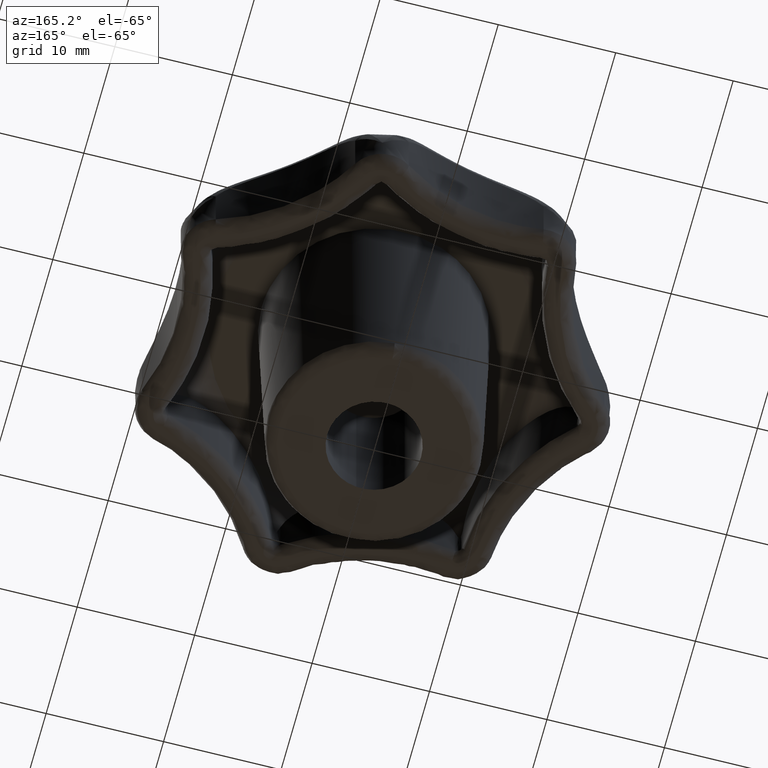
[diagram: clean part render]
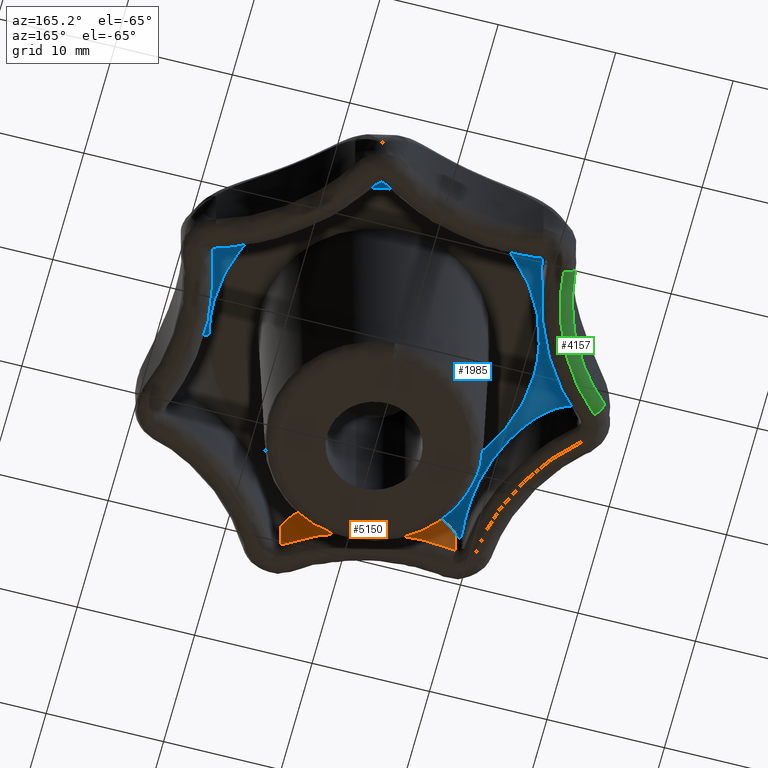
[diagram: same view with three faces highlighted in distinct colors, each labeled with its STEP entity id]
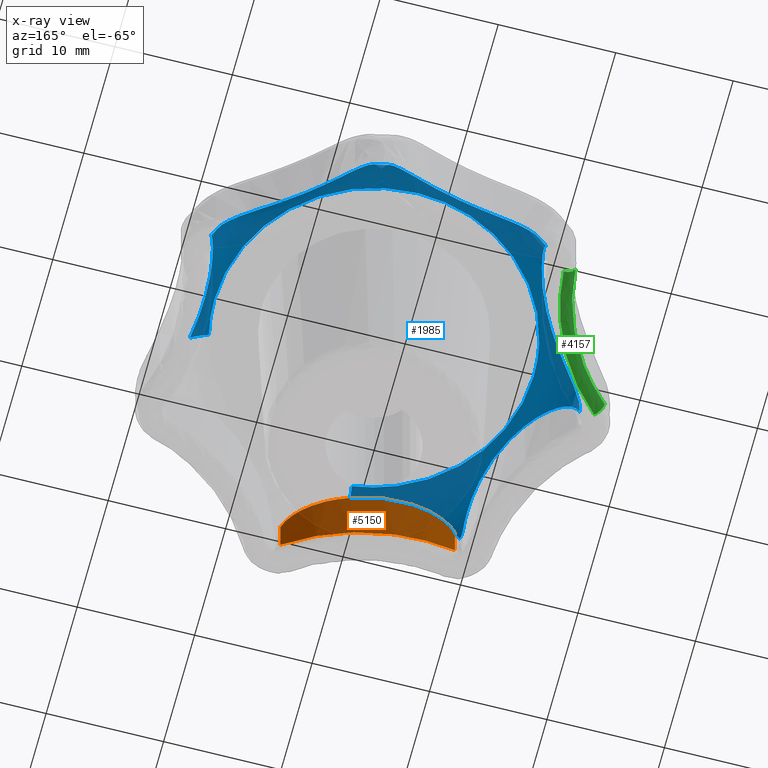
[diagram: x-ray of the same camera — body ghosted, the three highlighted faces saturated]
A machine part, auxiliary view with three faces highlighted in distinct colors.
The next image is the same camera in x-ray (body ghosted, the three faces saturated) — at least one of them is partly hidden behind the body in this view.
Their STEP definitions:

[orange] entity #5150 — the highlighted face is a freeform B-spline surface patch.
#1271=CARTESIAN_POINT('',(3.499661118528495,-16.985843755316800,17.414126175435499));
#1272=VERTEX_POINT('',#1271);
#1289=CARTESIAN_POINT('',(-1.784079747206680,-14.426906963445999,20.735883212834882));
#1290=VERTEX_POINT('',#1289);
#1291=CARTESIAN_POINT('',(3.499661118528495,-16.985843755316800,17.414126175435499));
#1292=CARTESIAN_POINT('',(3.449149090892987,-16.951129412916721,17.586078023980459));
#1293=CARTESIAN_POINT('',(3.388939407036657,-16.910092944264989,17.751307001812311));
#1294=CARTESIAN_POINT('',(3.250203763705552,-16.817009442942069,18.069365088456930));
#1295=CARTESIAN_POINT('',(3.171666790811581,-16.764954074952541,18.222186192458562));
#1296=CARTESIAN_POINT('',(3.040226519099361,-16.679498195911759,18.442450873525559));
#1297=CARTESIAN_POINT('',(2.994134482426201,-16.649781474349830,18.514374120918198));
#1298=CARTESIAN_POINT('',(2.897346621414955,-16.588010243397392,18.655241460519861));
#1299=CARTESIAN_POINT('',(2.846678972019574,-16.555977047881459,18.724101982200551));
#1300=CARTESIAN_POINT('',(2.690023006962777,-16.458008627936511,18.923464046209581));
#1301=CARTESIAN_POINT('',(2.578712007208362,-16.389775184673169,19.047793183238738));
#1302=CARTESIAN_POINT('',(2.343123741937629,-16.248934945204091,19.280943864943250));
#1303=CARTESIAN_POINT('',(2.218840303089765,-16.176323639872422,19.389756584870451));
#1304=CARTESIAN_POINT('',(2.023013894862250,-16.065057748595169,19.542220030046650));
#1305=CARTESIAN_POINT('',(1.956004914334999,-16.027487187380508,19.591350152428369));
#1306=CARTESIAN_POINT('',(1.820235375715962,-15.952444265790870,19.685245377785609));
#1307=CARTESIAN_POINT('',(1.751369956813941,-15.914909776791900,19.730106760145329));
#1308=CARTESIAN_POINT('',(1.402362853919934,-15.727465622892270,19.944762617527079));
#1309=CARTESIAN_POINT('',(1.108259987746075,-15.578322418644451,20.085856278717671));
#1310=CARTESIAN_POINT('',(0.647851458679052,-15.360279330043420,20.262763131078991));
#1311=CARTESIAN_POINT('',(0.491157521418176,-15.288527500670369,20.315893716810141));
#1312=CARTESIAN_POINT('',(0.251566299478673,-15.182738895706679,20.387905073442852));
#1313=CARTESIAN_POINT('',(0.171018514332474,-15.147817464967019,20.410598745468850));
#1314=CARTESIAN_POINT('',(0.009524964535842,-15.079097905938401,20.453327929095401));
#1315=CARTESIAN_POINT('',(-0.071551596643706,-15.045241586436360,20.473403612410401));
#1316=CARTESIAN_POINT('',(-0.478528955357798,-14.878522748812150,20.567895354126598));
#1317=CARTESIAN_POINT('',(-0.809191718839945,-14.753361488731651,20.624860070455082));
#1318=CARTESIAN_POINT('',(-1.355846503167614,-14.563407960306600,20.696024416733600));
#1319=CARTESIAN_POINT('',(-1.569085222802414,-14.493390038138630,20.718236641573789));
#1320=CARTESIAN_POINT('',(-1.784079747206680,-14.426906963445999,20.735883212834882));
#1321=B_SPLINE_CURVE_WITH_KNOTS('',3,(#1291,#1292,#1293,#1294,#1295,#1296,#1297,#1298,#1299,#1300,#1301,#1302,#1303,#1304,#1305,#1306,#1307,#1308,#1309,#1310,#1311,#1312,#1313,#1314,#1315,#1316,#1317,#1318,#1319,#1320),.UNSPECIFIED.,.F.,.U.,(4,2,2,2,2,2,2,2,2,2,2,2,2,2,4),(0.0,0.031250000000000,0.062500000000001,0.078125000000001,0.093750000000001,0.125000000000001,0.156250000000002,0.171875000000002,0.187500000000003,0.250000000000003,0.281250000000003,0.296875000000003,0.312500000000003,0.375000000000003,0.414416236830004),.UNSPECIFIED.);
#1322=EDGE_CURVE('',#1272,#1290,#1321,.T.);
#1391=CARTESIAN_POINT('',(-10.522967315530000,-13.785270283330361,17.414125964136151));
#1392=VERTEX_POINT('',#1391);
#1393=CARTESIAN_POINT('',(-1.784079747206680,-14.426906963445999,20.735883212834882));
#1394=CARTESIAN_POINT('',(-1.909989369303930,-14.387971914941931,20.746218138080248));
#1395=CARTESIAN_POINT('',(-2.036501189147463,-14.350249231960380,20.754987156682908));
#1396=CARTESIAN_POINT('',(-2.335667760089384,-14.264354112440021,20.772293824036620));
#1397=CARTESIAN_POINT('',(-2.508817166811286,-14.217204794963299,20.779618487175611));
#1398=CARTESIAN_POINT('',(-2.857269203006154,-14.127493010832440,20.789345867306860));
#1399=CARTESIAN_POINT('',(-3.032891128793816,-14.084861864873250,20.791744907418401));
#1400=CARTESIAN_POINT('',(-3.559768630188783,-13.964685665520539,20.791669979629241));
#1401=CARTESIAN_POINT('',(-3.911444031013383,-13.894705664813319,20.782113932887210));
#1402=CARTESIAN_POINT('',(-4.615401166991738,-13.774528333508780,20.742316647912538));
#1403=CARTESIAN_POINT('',(-4.967683376951920,-13.724335532150910,20.712073925576210));
#1404=CARTESIAN_POINT('',(-5.672186120022054,-13.643421854323600,20.624855193280592));
#1405=CARTESIAN_POINT('',(-6.024410769952290,-13.612705289693940,20.567913239439861));
#1406=CARTESIAN_POINT('',(-6.463933806454142,-13.586311331255571,20.473292381962601));
#1407=CARTESIAN_POINT('',(-6.551799109985932,-13.581632546380151,20.453182453334499));
#1408=CARTESIAN_POINT('',(-6.727426706613736,-13.573470012110890,20.410361585778720));
#1409=CARTESIAN_POINT('',(-6.815263819569371,-13.569985672909331,20.387625651774691));
#1410=CARTESIAN_POINT('',(-7.076882475223143,-13.561361597148000,20.315620756818952));
#1411=CARTESIAN_POINT('',(-7.249285429980625,-13.558024053101200,20.262447570130519));
#1412=CARTESIAN_POINT('',(-7.759582160058326,-13.554738711301850,20.085131989699700));
#1413=CARTESIAN_POINT('',(-8.090653345551683,-13.561550817438111,19.943425088962659));
#1414=CARTESIAN_POINT('',(-8.489148968217849,-13.579235370426570,19.726741588239310));
#1415=CARTESIAN_POINT('',(-8.567879174245872,-13.583221942198140,19.681500212224780));
#1416=CARTESIAN_POINT('',(-8.722056280810518,-13.591933330824411,19.587760747768758));
#1417=CARTESIAN_POINT('',(-8.797685277138807,-13.596665904729679,19.539165501082000));
#1418=CARTESIAN_POINT('',(-9.020042886097967,-13.611831415035221,19.388004667100279));
#1419=CARTESIAN_POINT('',(-9.162251903469141,-13.623233506033280,19.280075946782890));
#1420=CARTESIAN_POINT('',(-9.433622365544403,-13.647728388950460,19.048623905514159));
#1421=CARTESIAN_POINT('',(-9.562791458779051,-13.660822590668429,18.925109968673461));
#1422=CARTESIAN_POINT('',(-9.745724551045631,-13.681018642664270,18.726820637766370));
#1423=CARTESIAN_POINT('',(-9.804895032733437,-13.687842526633871,18.658549815940749));
#1424=CARTESIAN_POINT('',(-9.919385669754250,-13.701544733081150,18.517361324815560));
#1425=CARTESIAN_POINT('',(-9.974236980823028,-13.708367369075569,18.445000542532661));
#1426=CARTESIAN_POINT('',(-10.130566674788071,-13.728423779177501,18.223882681654711));
#1427=CARTESIAN_POINT('',(-10.224288405739340,-13.741297061863269,18.070565273910869));
#1428=CARTESIAN_POINT('',(-10.390172684313081,-13.765035105473910,17.751726924431399));
#1429=CARTESIAN_POINT('',(-10.462348091335610,-13.775902592461620,17.586213379138890));
#1430=CARTESIAN_POINT('',(-10.522967315530000,-13.785270283330361,17.414125964136151));
#1431=B_SPLINE_CURVE_WITH_KNOTS('',3,(#1393,#1394,#1395,#1396,#1397,#1398,#1399,#1400,#1401,#1402,#1403,#1404,#1405,#1406,#1407,#1408,#1409,#1410,#1411,#1412,#1413,#1414,#1415,#1416,#1417,#1418,#1419,#1420,#1421,#1422,#1423,#1424,#1425,#1426,#1427,#1428,#1429,#1430),.UNSPECIFIED.,.F.,.U.,(4,2,2,2,2,2,2,2,2,2,2,2,2,2,2,2,2,2,4),(0.414416236830004,0.437500000000004,0.468750000000004,0.500000000000004,0.562500000000005,0.625000000000005,0.687500000000005,0.703125000000005,0.718750000000005,0.750000000000005,0.812500000000005,0.828125000000004,0.843750000000004,0.875000000000003,0.906250000000002,0.921875000000002,0.937500000000002,0.968750000000001,1.0),.UNSPECIFIED.);
#1432=EDGE_CURVE('',#1290,#1392,#1431,.T.);
#3163=CARTESIAN_POINT('',(-10.522967315530000,-13.785270283330361,14.000000000000121));
#3164=VERTEX_POINT('',#3163);
#3311=CARTESIAN_POINT('',(3.499661118528495,-16.985843755316800,14.000000000000121));
#3312=VERTEX_POINT('',#3311);
#3344=CARTESIAN_POINT('',(3.499661118528495,-16.985843755316800,14.000000000000121));
#3345=CARTESIAN_POINT('',(-2.876707042395301,-12.603676616212079,14.000000000000115));
#3346=CARTESIAN_POINT('',(-10.522967315530000,-13.785270283330370,14.000000000000121));
#3354=(BOUNDED_CURVE()B_SPLINE_CURVE(2,(#3344,#3345,#3346),.UNSPECIFIED.,.F.,.U.)CURVE()GEOMETRIC_REPRESENTATION_ITEM()QUASI_UNIFORM_CURVE()RATIONAL_B_SPLINE_CURVE((1.0,0.929508301547724,1.0))REPRESENTATION_ITEM(''));
#3355=EDGE_CURVE('',#3312,#3164,#3354,.T.);
#5121=CARTESIAN_POINT('',(4.079754752169433,-17.400328813114285,20.961466821282524));
#5122=CARTESIAN_POINT('',(4.079754752169433,-17.400328813114285,13.825963329468056));
#5123=CARTESIAN_POINT('',(-2.807519222140009,-12.286543460604513,20.961466821282524));
#5124=CARTESIAN_POINT('',(-2.807519222140009,-12.286543460604513,13.825963329468063));
#5125=CARTESIAN_POINT('',(-11.231053072181219,-13.908092382454715,20.961466821282521));
#5126=CARTESIAN_POINT('',(-11.231053072181219,-13.908092382454715,13.825963329468062));
#5134=(BOUNDED_SURFACE()B_SPLINE_SURFACE(1,2,((#5121,#5123,#5125),(#5122,#5124,#5126)),.UNSPECIFIED.,.F.,.F.,.U.)B_SPLINE_SURFACE_WITH_KNOTS((2,2),(3,3),(0.0,7.135503491814469),(0.0,16.398035676231590),.UNSPECIFIED.)GEOMETRIC_REPRESENTATION_ITEM()RATIONAL_B_SPLINE_SURFACE(((0.999530636757835,0.911119866159003,0.991251856691792),(0.999530636757835,0.911119866159003,0.991251856691792)))REPRESENTATION_ITEM('')SURFACE());
#5135=CARTESIAN_POINT('',(3.499661118528495,-16.985843755316800,17.414126175435499));
#5136=CARTESIAN_POINT('',(3.499661118528495,-16.985843755316800,14.000000000000121));
#5137=QUASI_UNIFORM_CURVE('',1,(#5135,#5136),.UNSPECIFIED.,.F.,.U.);
#5138=EDGE_CURVE('',#1272,#3312,#5137,.T.);
#5139=ORIENTED_EDGE('',*,*,#5138,.T.);
#5140=ORIENTED_EDGE('',*,*,#3355,.T.);
#5141=CARTESIAN_POINT('',(-10.522967315530000,-13.785270283330361,17.414125964136151));
#5142=CARTESIAN_POINT('',(-10.522967315530000,-13.785270283330361,14.000000000000121));
#5143=QUASI_UNIFORM_CURVE('',1,(#5141,#5142),.UNSPECIFIED.,.F.,.U.);
#5144=EDGE_CURVE('',#1392,#3164,#5143,.T.);
#5145=ORIENTED_EDGE('',*,*,#5144,.F.);
#5146=ORIENTED_EDGE('',*,*,#1432,.F.);
#5147=ORIENTED_EDGE('',*,*,#1322,.F.);
#5148=EDGE_LOOP('',(#5139,#5140,#5145,#5146,#5147));
#5149=FACE_OUTER_BOUND('',#5148,.T.);
#5150=ADVANCED_FACE('',(#5149),#5134,.T.);

[blue] entity #1985 — the highlighted face is a freeform B-spline surface patch.
#1087=CARTESIAN_POINT('',(-1.669652371789499,-13.501593454466990,21.046026886644331));
#1088=VERTEX_POINT('',#1087);
#1089=CARTESIAN_POINT('',(13.218505185048111,-3.217436311057249,21.046026571830911));
#1090=VERTEX_POINT('',#1089);
#1106=CARTESIAN_POINT('',(14.739508324215590,-3.587656728953975,20.397046519687631));
#1107=VERTEX_POINT('',#1106);
#1108=CARTESIAN_POINT('',(14.739508324215585,-3.587656728953976,20.397046519687628));
#1109=CARTESIAN_POINT('',(14.033219155068242,-3.415742032147844,20.856120846740527));
#1110=CARTESIAN_POINT('',(13.218505185048105,-3.217436311057249,21.046026571830904));
#1118=(BOUNDED_CURVE()B_SPLINE_CURVE(2,(#1108,#1109,#1110),.UNSPECIFIED.,.F.,.U.)B_SPLINE_CURVE_WITH_KNOTS((3,3),(-0.665350541216781,-0.305029488990702),.UNSPECIFIED.)CURVE()GEOMETRIC_REPRESENTATION_ITEM()RATIONAL_B_SPLINE_CURVE((0.819226445417947,0.843773361200611,0.894750233140604))REPRESENTATION_ITEM(''));
#1119=EDGE_CURVE('',#1107,#1090,#1118,.T.);
#1289=CARTESIAN_POINT('',(-1.784079747206680,-14.426906963445999,20.735883212834882));
#1290=VERTEX_POINT('',#1289);
#1324=CARTESIAN_POINT('',(-1.784079747206680,-14.426906963445994,20.735883212834874));
#1325=CARTESIAN_POINT('',(-1.728745267376878,-13.979446366688016,20.936984044847993));
#1326=CARTESIAN_POINT('',(-1.669652371789499,-13.501593454466994,21.046026886644331));
#1334=(BOUNDED_CURVE()B_SPLINE_CURVE(2,(#1324,#1325,#1326),.UNSPECIFIED.,.F.,.U.)B_SPLINE_CURVE_WITH_KNOTS((3,3),(-0.517079367495615,-0.305029386877540),.UNSPECIFIED.)CURVE()GEOMETRIC_REPRESENTATION_ITEM()RATIONAL_B_SPLINE_CURVE((0.807519846975642,0.827467482328559,0.856174104987580))REPRESENTATION_ITEM(''));
#1335=EDGE_CURVE('',#1290,#1088,#1334,.T.);
#1340=CARTESIAN_POINT('',(16.994311728408494,-4.136482519792380,15.861238034948578));
#1341=CARTESIAN_POINT('',(21.130794248200864,12.857829208616106,15.861238034948581));
#1342=CARTESIAN_POINT('',(4.136482519792381,16.994311728408480,15.861238034948578));
#1343=CARTESIAN_POINT('',(-12.857829208616103,21.130794248200864,15.861238034948581));
#1344=CARTESIAN_POINT('',(-16.994311728408480,4.136482519792382,15.861238034948578));
#1345=CARTESIAN_POINT('',(-21.130794248200864,-12.857829208616097,15.861238034948581));
#1346=CARTESIAN_POINT('',(-4.136482519792387,-16.994311728408480,15.861238034948578));
#1347=CARTESIAN_POINT('',(-3.152073133267827,-17.233920856730613,15.861238034948581));
#1348=CARTESIAN_POINT('',(-2.146581552029241,-17.358263346295853,15.861238034948585));
#1349=CARTESIAN_POINT('',(17.265469333547518,-4.202483350640464,20.378757128523880));
#1350=CARTESIAN_POINT('',(21.467952684187960,13.062985982907037,20.378757128523873));
#1351=CARTESIAN_POINT('',(4.202483350640468,17.265469333547504,20.378757128523880));
#1352=CARTESIAN_POINT('',(-13.062985982907037,21.467952684187960,20.378757128523873));
#1353=CARTESIAN_POINT('',(-17.265469333547504,4.202483350640469,20.378757128523880));
#1354=CARTESIAN_POINT('',(-21.467952684187981,-13.062985982907033,20.378757128523873));
#1355=CARTESIAN_POINT('',(-4.202483350640471,-17.265469333547504,20.378757128523880));
#1356=CARTESIAN_POINT('',(-3.202366938377401,-17.508901613900939,20.378757128523876));
#1357=CARTESIAN_POINT('',(-2.180831948408098,-17.635228085649533,20.378757128523873));
#1358=CARTESIAN_POINT('',(12.924683989479369,-3.145919072847831,21.104784566662733));
#1359=CARTESIAN_POINT('',(16.070603062327191,9.778764916631534,21.104784566662723));
#1360=CARTESIAN_POINT('',(3.145919072847832,12.924683989479369,21.104784566662733));
#1361=CARTESIAN_POINT('',(-9.778764916631534,16.070603062327191,21.104784566662723));
#1362=CARTESIAN_POINT('',(-12.924683989479369,3.145919072847833,21.104784566662733));
#1363=CARTESIAN_POINT('',(-16.070603062327191,-9.778764916631531,21.104784566662723));
#1364=CARTESIAN_POINT('',(-3.145919072847836,-12.924683989479369,21.104784566662733));
#1365=CARTESIAN_POINT('',(-2.397246196862012,-13.106913921120629,21.104784566662740));
#1366=CARTESIAN_POINT('',(-1.632539679217849,-13.201480115373107,21.104784566662740));
#1374=(BOUNDED_SURFACE()B_SPLINE_SURFACE(2,2,((#1340,#1349,#1358),(#1341,#1350,#1359),(#1342,#1351,#1360),(#1343,#1352,#1361),(#1344,#1353,#1362),(#1345,#1354,#1363),(#1346,#1355,#1364),(#1347,#1356,#1365),(#1348,#1357,#1366)),.UNSPECIFIED.,.F.,.F.,.U.)B_SPLINE_SURFACE_WITH_KNOTS((3,2,2,2,3),(3,3),(0.0,28.979186918841069,57.958373837682132,86.937560756523197,89.255895226388120),(0.0,7.707777256037857),.UNSPECIFIED.)GEOMETRIC_REPRESENTATION_ITEM()RATIONAL_B_SPLINE_SURFACE(((0.914120513998584,0.678139749898609,0.915316650343244),(0.646380814270131,0.479517215745456,0.647226610390664),(0.914120513998584,0.678139749898609,0.915316650343244),(0.646380814270131,0.479517215745456,0.647226610390664),(0.914120513998584,0.678139749898609,0.915316650343244),(0.646380814270131,0.479517215745456,0.647226610390664),(0.914120513998584,0.678139749898609,0.915316650343244),(0.892701342488696,0.662249950481227,0.893869451621273),(0.874709237705448,0.648902518440248,0.875853803978939)))REPRESENTATION_ITEM('')SURFACE());
#1375=CARTESIAN_POINT('',(-13.604435242326320,0.0,21.046027536220510));
#1376=VERTEX_POINT('',#1375);
#1377=CARTESIAN_POINT('',(-13.604435242326320,0.0,21.046027536220510));
#1378=CARTESIAN_POINT('',(-13.604435242326314,-12.025695844211818,21.046027536220510));
#1379=CARTESIAN_POINT('',(-1.669652371789498,-13.501593454466992,21.046026886644331));
#1387=(BOUNDED_CURVE()B_SPLINE_CURVE(2,(#1377,#1378,#1379),.UNSPECIFIED.,.F.,.U.)B_SPLINE_CURVE_WITH_KNOTS((3,3),(0.0,0.228763938646232),.UNSPECIFIED.)CURVE()GEOMETRIC_REPRESENTATION_ITEM()RATIONAL_B_SPLINE_CURVE((1.0,0.731986374645848,0.954467569666668))REPRESENTATION_ITEM(''));
#1388=EDGE_CURVE('',#1376,#1088,#1387,.T.);
#1389=ORIENTED_EDGE('',*,*,#1388,.T.);
#1390=ORIENTED_EDGE('',*,*,#1335,.F.);
#1391=CARTESIAN_POINT('',(-10.522967315530000,-13.785270283330361,17.414125964136151));
#1392=VERTEX_POINT('',#1391);
#1393=CARTESIAN_POINT('',(-1.784079747206680,-14.426906963445999,20.735883212834882));
#1394=CARTESIAN_POINT('',(-1.909989369303930,-14.387971914941931,20.746218138080248));
#1395=CARTESIAN_POINT('',(-2.036501189147463,-14.350249231960380,20.754987156682908));
#1396=CARTESIAN_POINT('',(-2.335667760089384,-14.264354112440021,20.772293824036620));
#1397=CARTESIAN_POINT('',(-2.508817166811286,-14.217204794963299,20.779618487175611));
#1398=CARTESIAN_POINT('',(-2.857269203006154,-14.127493010832440,20.789345867306860));
#1399=CARTESIAN_POINT('',(-3.032891128793816,-14.084861864873250,20.791744907418401));
#1400=CARTESIAN_POINT('',(-3.559768630188783,-13.964685665520539,20.791669979629241));
#1401=CARTESIAN_POINT('',(-3.911444031013383,-13.894705664813319,20.782113932887210));
#1402=CARTESIAN_POINT('',(-4.615401166991738,-13.774528333508780,20.742316647912538));
#1403=CARTESIAN_POINT('',(-4.967683376951920,-13.724335532150910,20.712073925576210));
#1404=CARTESIAN_POINT('',(-5.672186120022054,-13.643421854323600,20.624855193280592));
#1405=CARTESIAN_POINT('',(-6.024410769952290,-13.612705289693940,20.567913239439861));
#1406=CARTESIAN_POINT('',(-6.463933806454142,-13.586311331255571,20.473292381962601));
#1407=CARTESIAN_POINT('',(-6.551799109985932,-13.581632546380151,20.453182453334499));
#1408=CARTESIAN_POINT('',(-6.727426706613736,-13.573470012110890,20.410361585778720));
#1409=CARTESIAN_POINT('',(-6.815263819569371,-13.569985672909331,20.387625651774691));
#1410=CARTESIAN_POINT('',(-7.076882475223143,-13.561361597148000,20.315620756818952));
#1411=CARTESIAN_POINT('',(-7.249285429980625,-13.558024053101200,20.262447570130519));
#1412=CARTESIAN_POINT('',(-7.759582160058326,-13.554738711301850,20.085131989699700));
#1413=CARTESIAN_POINT('',(-8.090653345551683,-13.561550817438111,19.943425088962659));
#1414=CARTESIAN_POINT('',(-8.489148968217849,-13.579235370426570,19.726741588239310));
#1415=CARTESIAN_POINT('',(-8.567879174245872,-13.583221942198140,19.681500212224780));
#1416=CARTESIAN_POINT('',(-8.722056280810518,-13.591933330824411,19.587760747768758));
#1417=CARTESIAN_POINT('',(-8.797685277138807,-13.596665904729679,19.539165501082000));
#1418=CARTESIAN_POINT('',(-9.020042886097967,-13.611831415035221,19.388004667100279));
#1419=CARTESIAN_POINT('',(-9.162251903469141,-13.623233506033280,19.280075946782890));
#1420=CARTESIAN_POINT('',(-9.433622365544403,-13.647728388950460,19.048623905514159));
#1421=CARTESIAN_POINT('',(-9.562791458779051,-13.660822590668429,18.925109968673461));
#1422=CARTESIAN_POINT('',(-9.745724551045631,-13.681018642664270,18.726820637766370));
#1423=CARTESIAN_POINT('',(-9.804895032733437,-13.687842526633871,18.658549815940749));
#1424=CARTESIAN_POINT('',(-9.919385669754250,-13.701544733081150,18.517361324815560));
#1425=CARTESIAN_POINT('',(-9.974236980823028,-13.708367369075569,18.445000542532661));
#1426=CARTESIAN_POINT('',(-10.130566674788071,-13.728423779177501,18.223882681654711));
#1427=CARTESIAN_POINT('',(-10.224288405739340,-13.741297061863269,18.070565273910869));
#1428=CARTESIAN_POINT('',(-10.390172684313081,-13.765035105473910,17.751726924431399));
#1429=CARTESIAN_POINT('',(-10.462348091335610,-13.775902592461620,17.586213379138890));
#1430=CARTESIAN_POINT('',(-10.522967315530000,-13.785270283330361,17.414125964136151));
#1431=B_SPLINE_CURVE_WITH_KNOTS('',3,(#1393,#1394,#1395,#1396,#1397,#1398,#1399,#1400,#1401,#1402,#1403,#1404,#1405,#1406,#1407,#1408,#1409,#1410,#1411,#1412,#1413,#1414,#1415,#1416,#1417,#1418,#1419,#1420,#1421,#1422,#1423,#1424,#1425,#1426,#1427,#1428,#1429,#1430),.UNSPECIFIED.,.F.,.U.,(4,2,2,2,2,2,2,2,2,2,2,2,2,2,2,2,2,2,4),(0.414416236830004,0.437500000000004,0.468750000000004,0.500000000000004,0.562500000000005,0.625000000000005,0.687500000000005,0.703125000000005,0.718750000000005,0.750000000000005,0.812500000000005,0.828125000000004,0.843750000000004,0.875000000000003,0.906250000000002,0.921875000000002,0.937500000000002,0.968750000000001,1.0),.UNSPECIFIED.);
#1432=EDGE_CURVE('',#1290,#1392,#1431,.T.);
#1433=ORIENTED_EDGE('',*,*,#1432,.T.);
#1434=CARTESIAN_POINT('',(-10.911071896110901,-13.682051745076601,16.169530556264149));
#1435=VERTEX_POINT('',#1434);
#1436=CARTESIAN_POINT('',(-10.522967315530000,-13.785270283330361,17.414125964136151));
#1437=CARTESIAN_POINT('',(-10.559147516063771,-13.790861838869590,17.311414869675609));
#1438=CARTESIAN_POINT('',(-10.595198148658980,-13.792353689069520,17.207850302665261));
#1439=CARTESIAN_POINT('',(-10.665383001255920,-13.787998983072450,17.000825526035371));
#1440=CARTESIAN_POINT('',(-10.699542879157660,-13.782174663285460,16.897314035002260));
#1441=CARTESIAN_POINT('',(-10.765265442348570,-13.764027768407351,16.689996417457859));
#1442=CARTESIAN_POINT('',(-10.796831012051570,-13.751701971723600,16.586191465901749));
#1443=CARTESIAN_POINT('',(-10.841713406308340,-13.728778596542501,16.430063368253229));
#1444=CARTESIAN_POINT('',(-10.856267247008100,-13.720393460483360,16.377934908577789));
#1445=CARTESIAN_POINT('',(-10.877370008519490,-13.706782664718631,16.299773798068578));
#1446=CARTESIAN_POINT('',(-10.884285149029919,-13.702072383316390,16.273719340742389));
#1447=CARTESIAN_POINT('',(-10.897860691639369,-13.692318617753910,16.221602112789721));
#1448=CARTESIAN_POINT('',(-10.904418233878900,-13.687357317246210,16.195448949467110));
#1449=CARTESIAN_POINT('',(-10.911071896110901,-13.682051745076601,16.169530556264149));
#1450=B_SPLINE_CURVE_WITH_KNOTS('',3,(#1436,#1437,#1438,#1439,#1440,#1441,#1442,#1443,#1444,#1445,#1446,#1447,#1448,#1449),.UNSPECIFIED.,.F.,.U.,(4,2,2,2,2,2,4),(0.0,0.249999999999998,0.499999999999997,0.749999999999995,0.874999999999994,0.937499999999997,1.0),.UNSPECIFIED.);
#1451=EDGE_CURVE('',#1392,#1435,#1450,.T.);
#1452=ORIENTED_EDGE('',*,*,#1451,.T.);
#1453=CARTESIAN_POINT('',(-11.098064443111900,-13.326646038555539,17.414124717588251));
#1454=VERTEX_POINT('',#1453);
#1455=CARTESIAN_POINT('',(-11.098064443111889,-13.326646038555539,17.414124717588251));
#1456=CARTESIAN_POINT('',(-11.095466785053810,-13.363130069287751,17.311508511438529));
#1457=CARTESIAN_POINT('',(-11.088916012068040,-13.398563100021651,17.208087158724869));
#1458=CARTESIAN_POINT('',(-11.069046304348300,-13.466069580765250,17.000919174252889));
#1459=CARTESIAN_POINT('',(-11.055760894442139,-13.498092250327559,16.897359457307140));
#1460=CARTESIAN_POINT('',(-11.023436762423151,-13.558144799410520,16.689988803425500));
#1461=CARTESIAN_POINT('',(-11.004394207893659,-13.586176768977820,16.586179061494011));
#1462=CARTESIAN_POINT('',(-10.972063415777169,-13.624827008151311,16.430075249348519));
#1463=CARTESIAN_POINT('',(-10.960651281117610,-13.637149107330830,16.377951804524749));
#1464=CARTESIAN_POINT('',(-10.942684509993651,-13.654695757087360,16.299783930414819));
#1465=CARTESIAN_POINT('',(-10.936553146398539,-13.660389831719190,16.273727582144069));
#1466=CARTESIAN_POINT('',(-10.924022395664540,-13.671455294919900,16.221607296752889));
#1467=CARTESIAN_POINT('',(-10.917726826573791,-13.676744069160421,16.195455964196910));
#1468=CARTESIAN_POINT('',(-10.911071896110901,-13.682051745076601,16.169530556264149));
#1469=B_SPLINE_CURVE_WITH_KNOTS('',3,(#1455,#1456,#1457,#1458,#1459,#1460,#1461,#1462,#1463,#1464,#1465,#1466,#1467,#1468),.UNSPECIFIED.,.F.,.U.,(4,2,2,2,2,2,4),(0.0,0.250000000000000,0.500000000000000,0.750000000000000,0.875000000000000,0.937500000000000,1.0),.UNSPECIFIED.);
#1470=EDGE_CURVE('',#1454,#1435,#1469,.T.);
#1471=ORIENTED_EDGE('',*,*,#1470,.F.);
#1472=CARTESIAN_POINT('',(-17.338721224291600,-0.367789203136729,17.414125438754901));
#1473=VERTEX_POINT('',#1472);
#1474=CARTESIAN_POINT('',(-17.338721224291650,-0.367789203136721,17.414125438754901));
#1475=CARTESIAN_POINT('',(-17.293637375822701,-0.409309888126180,17.586077613930922));
#1476=CARTESIAN_POINT('',(-17.240231991199622,-0.458878541593139,17.751306872637219));
#1477=CARTESIAN_POINT('',(-17.118610966457162,-0.573422823162509,18.069365545274600));
#1478=CARTESIAN_POINT('',(-17.050384749289350,-0.638407333777821,18.222186954408969));
#1479=CARTESIAN_POINT('',(-16.937823421314150,-0.747536455986373,18.442452110699129));
#1480=CARTESIAN_POINT('',(-16.898595386193279,-0.785860295534224,18.514375519426729));
#1481=CARTESIAN_POINT('',(-16.816835703470471,-0.866476130888269,18.655243187506809));
#1482=CARTESIAN_POINT('',(-16.774331105565530,-0.908745400179146,18.724103874942131));
#1483=CARTESIAN_POINT('',(-16.643959939405331,-1.039673711206392,18.923466437773499));
#1484=CARTESIAN_POINT('',(-16.552668365055169,-1.133010586237803,19.047795911325540));
#1485=CARTESIAN_POINT('',(-16.362936246817110,-1.331352352737691,19.280947273117910));
#1486=CARTESIAN_POINT('',(-16.264489933160220,-1.436362259387527,19.389760336612952));
#1487=CARTESIAN_POINT('',(-16.112438447091431,-1.602519977050073,19.542224301860880));
#1488=CARTESIAN_POINT('',(-16.060899028692429,-1.659488691817455,19.591354598360791));
#1489=CARTESIAN_POINT('',(-15.957526168365030,-1.775155633566231,19.685250168617980));
#1490=CARTESIAN_POINT('',(-15.905608821094050,-1.833942268301185,19.730111722800579));
#1491=CARTESIAN_POINT('',(-15.645203250050670,-2.132488913552189,19.944768436313058));
#1492=CARTESIAN_POINT('',(-15.434355608281001,-2.386030627461798,20.085862772917441));
#1493=CARTESIAN_POINT('',(-15.119329185006100,-2.786376766144831,20.262770626167921));
#1494=CARTESIAN_POINT('',(-15.014508776543790,-2.923175830940825,20.315901543479299));
#1495=CARTESIAN_POINT('',(-14.858058649772060,-3.133219906688300,20.387913394590068));
#1496=CARTESIAN_POINT('',(-14.806089272210439,-3.203977466909451,20.410607229822229));
#1497=CARTESIAN_POINT('',(-14.703157095104499,-3.346130548006216,20.453336737362878));
#1498=CARTESIAN_POINT('',(-14.652108458883740,-3.417640636808367,20.473412581443490));
#1499=CARTESIAN_POINT('',(-14.399008960101421,-3.777315922676867,20.567905121410249));
#1500=CARTESIAN_POINT('',(-14.203406624611690,-4.071837384659698,20.624870458651770));
#1501=CARTESIAN_POINT('',(-13.827077090792571,-4.673655797308612,20.712154558105698));
#1502=CARTESIAN_POINT('',(-13.646343470896660,-4.980952867483513,20.742444181714170));
#1503=CARTESIAN_POINT('',(-13.386987248047030,-5.451227339119351,20.772305276541150));
#1504=CARTESIAN_POINT('',(-13.302490604726881,-5.609543796156878,20.779629725407869));
#1505=CARTESIAN_POINT('',(-13.137490027940830,-5.929296618061695,20.789356670626130));
#1506=CARTESIAN_POINT('',(-13.056848087474860,-6.091028990036204,20.791755489606111));
#1507=CARTESIAN_POINT('',(-12.822443415637530,-6.577954766319882,20.791679893086808));
#1508=CARTESIAN_POINT('',(-12.675962640609750,-6.905240859621216,20.782123393204831));
#1509=CARTESIAN_POINT('',(-12.402152841505471,-7.564806239758460,20.742325184148779));
#1510=CARTESIAN_POINT('',(-12.274828127449419,-7.897086997350379,20.712081990918531));
#1511=CARTESIAN_POINT('',(-12.039176142310540,-8.565921296348137,20.624862292831821));
#1512=CARTESIAN_POINT('',(-11.930852158881670,-8.902479810838917,20.567919844216281));
#1513=CARTESIAN_POINT('',(-11.807316635700481,-9.325109819468754,20.473298346030418));
#1514=CARTESIAN_POINT('',(-11.783203240193410,-9.409731017048426,20.453188288128999));
#1515=CARTESIAN_POINT('',(-11.736164444241130,-9.579138905111652,20.410367159483989));
#1516=CARTESIAN_POINT('',(-11.713221821855541,-9.663998400640411,20.387631095524590));
#1517=CARTESIAN_POINT('',(-11.646598205053330,-9.917138626727496,20.315625812840210));
#1518=CARTESIAN_POINT('',(-11.604980981798800,-10.084476363089690,20.262452365968269));
#1519=CARTESIAN_POINT('',(-11.488226028416030,-10.581247706184580,20.085135997780561));
#1520=CARTESIAN_POINT('',(-11.421196885027211,-10.905534003587981,19.943428562866188));
#1521=CARTESIAN_POINT('',(-11.349764197198800,-11.297973598703130,19.726744369817339));
#1522=CARTESIAN_POINT('',(-11.336131654960790,-11.375616932126880,19.681502865462370));
#1523=CARTESIAN_POINT('',(-11.310316908898800,-11.527866899724790,19.587763140215429));
#1524=CARTESIAN_POINT('',(-11.298101748422770,-11.602652784858870,19.539167763556328));
#1525=CARTESIAN_POINT('',(-11.263407673549491,-11.822809975898570,19.388006540597988));
#1526=CARTESIAN_POINT('',(-11.242879320150781,-11.963990660870360,19.280077562244809));
#1527=CARTESIAN_POINT('',(-11.206374285187810,-12.234007806613249,19.048625005156619));
#1528=CARTESIAN_POINT('',(-11.190397276114810,-12.362852037877600,18.925110810555189));
#1529=CARTESIAN_POINT('',(-11.169380403830690,-12.545692574064660,18.726821090613729));
#1530=CARTESIAN_POINT('',(-11.162866486798579,-12.604897956605480,18.658550138700271));
#1531=CARTESIAN_POINT('',(-11.150748505444151,-12.719567044213269,18.517361385954910));
#1532=CARTESIAN_POINT('',(-11.145194480974920,-12.774561247358029,18.445000501146911));
#1533=CARTESIAN_POINT('',(-11.129961292014279,-12.931434277530000,18.223882308044150));
#1534=CARTESIAN_POINT('',(-11.121656695188969,-13.025670702639189,18.070564688969998));
#1535=CARTESIAN_POINT('',(-11.107886714632791,-13.192677964867491,17.751725936492409));
#1536=CARTESIAN_POINT('',(-11.102421127121801,-13.265461945601350,17.586212199532198));
#1537=CARTESIAN_POINT('',(-11.098064443111900,-13.326646038555539,17.414124717588251));
#1538=B_SPLINE_CURVE_WITH_KNOTS('',3,(#1474,#1475,#1476,#1477,#1478,#1479,#1480,#1481,#1482,#1483,#1484,#1485,#1486,#1487,#1488,#1489,#1490,#1491,#1492,#1493,#1494,#1495,#1496,#1497,#1498,#1499,#1500,#1501,#1502,#1503,#1504,#1505,#1506,#1507,#1508,#1509,#1510,#1511,#1512,#1513,#1514,#1515,#1516,#1517,#1518,#1519,#1520,#1521,#1522,#1523,#1524,#1525,#1526,#1527,#1528,#1529,#1530,#1531,#1532,#1533,#1534,#1535,#1536,#1537),.UNSPECIFIED.,.F.,.U.,(4,2,2,2,2,2,2,2,2,2,2,2,2,2,2,2,2,2,2,2,2,2,2,2,2,2,2,2,2,2,2,4),(0.0,0.031250000000000,0.062500000000001,0.078125000000001,0.093750000000001,0.125000000000001,0.156250000000000,0.171875000000000,0.187500000000000,0.250000000000000,0.281250000000000,0.296875000000000,0.312500000000000,0.375000000000000,0.437500000000000,0.468750000000000,0.500000000000000,0.562500000000000,0.625000000000001,0.687500000000001,0.703125000000001,0.718750000000001,0.750000000000001,0.812500000000001,0.828125000000001,0.843750000000001,0.875000000000001,0.906250000000001,0.921875000000001,0.937500000000001,0.968750000000000,1.0),.UNSPECIFIED.);
#1539=EDGE_CURVE('',#1473,#1454,#1538,.T.);
#1540=ORIENTED_EDGE('',*,*,#1539,.F.);
#1541=CARTESIAN_POINT('',(-17.500000000000000,2.143061E-015,16.169530556264149));
#1542=VERTEX_POINT('',#1541);
#1543=CARTESIAN_POINT('',(-17.338721224291600,-0.367789203136729,17.414125438754901));
#1544=CARTESIAN_POINT('',(-17.365650824873601,-0.342987773392897,17.311414551040141));
#1545=CARTESIAN_POINT('',(-17.389294375705440,-0.315732185641010,17.207850099711941));
#1546=CARTESIAN_POINT('',(-17.429649221890671,-0.258143824223155,17.000825610412338));
#1547=CARTESIAN_POINT('',(-17.446393902041951,-0.227804860003509,16.897314275396742));
#1548=CARTESIAN_POINT('',(-17.473183408949762,-0.165105611047118,16.689997056915079));
#1549=CARTESIAN_POINT('',(-17.483227515361111,-0.132741210935200,16.586192304177249));
#1550=CARTESIAN_POINT('',(-17.493289008808510,-0.083356098923191,16.430064948434360));
#1551=CARTESIAN_POINT('',(-17.495807415671401,-0.066748681121329,16.377936730303151));
#1552=CARTESIAN_POINT('',(-17.499162091165928,-0.033429964466630,16.273723742338721));
#1553=CARTESIAN_POINT('',(-17.500000001372630,-0.016668097019308,16.221481538606440));
#1554=CARTESIAN_POINT('',(-17.500000000000000,2.143061E-015,16.169530556264149));
#1555=B_SPLINE_CURVE_WITH_KNOTS('',3,(#1543,#1544,#1545,#1546,#1547,#1548,#1549,#1550,#1551,#1552,#1553,#1554),.UNSPECIFIED.,.F.,.U.,(4,2,2,2,2,4),(0.0,0.249999999999998,0.499999999999997,0.749999999999995,0.874999999999997,1.0),.UNSPECIFIED.);
#1556=EDGE_CURVE('',#1473,#1542,#1555,.T.);
#1557=ORIENTED_EDGE('',*,*,#1556,.T.);
#1558=CARTESIAN_POINT('',(-17.338720603039150,0.367788462403030,17.414127916575548));
#1559=VERTEX_POINT('',#1558);
#1560=CARTESIAN_POINT('',(-17.500000000000000,-4.484155E-041,16.169530556264149));
#1561=CARTESIAN_POINT('',(-17.500000000000000,0.008314420334974,16.195444953787309));
#1562=CARTESIAN_POINT('',(-17.499790565683721,0.016715322456941,16.221628438272131));
#1563=CARTESIAN_POINT('',(-17.498951423940561,0.033428851296096,16.273766540249600));
#1564=CARTESIAN_POINT('',(-17.497063779105211,0.058458770559744,16.351916683806131));
#1565=CARTESIAN_POINT('',(-17.493296051841291,0.083307893259277,16.429914620023091));
#1566=CARTESIAN_POINT('',(-17.483260814676960,0.132603862552159,16.585757167951769));
#1567=CARTESIAN_POINT('',(-17.473241663809770,0.164935034963563,16.689447134195529));
#1568=CARTESIAN_POINT('',(-17.446487637007792,0.227618162990272,16.896687404264270));
#1569=CARTESIAN_POINT('',(-17.429753594287519,0.257974325951557,17.000236524977129));
#1570=CARTESIAN_POINT('',(-17.389373511579880,0.315637724508902,17.207497622556222));
#1571=CARTESIAN_POINT('',(-17.365688781432748,0.342951691861995,17.311270076326561));
#1572=CARTESIAN_POINT('',(-17.338720603039182,0.367788462403021,17.414127916575559));
#1573=B_SPLINE_CURVE_WITH_KNOTS('',3,(#1560,#1561,#1562,#1563,#1564,#1565,#1566,#1567,#1568,#1569,#1570,#1571,#1572),.UNSPECIFIED.,.F.,.U.,(4,2,1,2,2,2,4),(0.0,0.062499999999998,0.124999999999997,0.250000000000000,0.500000000000000,0.750000000000000,1.0),.UNSPECIFIED.);
#1574=EDGE_CURVE('',#1542,#1559,#1573,.T.);
#1575=ORIENTED_EDGE('',*,*,#1574,.T.);
#1576=CARTESIAN_POINT('',(-11.098064814876359,13.326645144646520,17.414126464635601));
#1577=VERTEX_POINT('',#1576);
#1578=CARTESIAN_POINT('',(-17.338720603039150,0.367788462403030,17.414127916575548));
#1579=CARTESIAN_POINT('',(-17.293636693652690,0.409309519923153,17.586079947394261));
#1580=CARTESIAN_POINT('',(-17.240231245622368,0.458878237319972,17.751309127684870));
#1581=CARTESIAN_POINT('',(-17.118610111843442,0.573422634516677,18.069367636701951));
#1582=CARTESIAN_POINT('',(-17.050383849056470,0.638407196821914,18.222188960626649));
#1583=CARTESIAN_POINT('',(-16.937822466481538,0.747536386573939,18.442453985032611));
#1584=CARTESIAN_POINT('',(-16.898594415472640,0.785860246959459,18.514377349122189));
#1585=CARTESIAN_POINT('',(-16.816834705756460,0.866476120358736,18.655244926772369));
#1586=CARTESIAN_POINT('',(-16.774330094080860,0.908745409496894,18.724105572920561));
#1587=CARTESIAN_POINT('',(-16.643958893459509,1.039673774601376,18.923468011752661));
#1588=CARTESIAN_POINT('',(-16.552667304433012,1.133010679264420,19.047797403423360));
#1589=CARTESIAN_POINT('',(-16.362935172265018,1.331352491775273,19.280948604446639));
#1590=CARTESIAN_POINT('',(-16.264488859364011,1.436362414796536,19.389761589056810));
#1591=CARTESIAN_POINT('',(-16.112437385348809,1.602520146296705,19.542225439403790));
#1592=CARTESIAN_POINT('',(-16.060897971319420,1.659488865497005,19.591355699632160));
#1593=CARTESIAN_POINT('',(-15.957525116621399,1.775155819839685,19.685251204550539));
#1594=CARTESIAN_POINT('',(-15.905607773497330,1.833942459536494,19.730112726931740));
#1595=CARTESIAN_POINT('',(-15.645202229269939,2.132489123048217,19.944769285865231));
#1596=CARTESIAN_POINT('',(-15.434354628293290,2.386030830688777,20.085863513044110));
#1597=CARTESIAN_POINT('',(-15.119328285986080,2.786376929736880,20.262771224661090));
#1598=CARTESIAN_POINT('',(-15.014507907832700,2.923175976267773,20.315902098497780));
#1599=CARTESIAN_POINT('',(-14.858057830494900,3.133220017105233,20.387913889979579));
#1600=CARTESIAN_POINT('',(-14.806088461612150,3.203977575909558,20.410607710016428));
#1601=CARTESIAN_POINT('',(-14.703156305829030,3.346130648490126,20.453337187066460));
#1602=CARTESIAN_POINT('',(-14.652107680687299,3.417640732246404,20.473413016632151));
#1603=CARTESIAN_POINT('',(-14.399008239083850,3.777315989076230,20.567905487524669));
#1604=CARTESIAN_POINT('',(-14.203405954954080,4.071837415695618,20.624870780699279));
#1605=CARTESIAN_POINT('',(-13.827076528925931,4.673655735700960,20.712154810536020));
#1606=CARTESIAN_POINT('',(-13.646342965484310,4.980952748603930,20.742444408538670));
#1607=CARTESIAN_POINT('',(-13.386986827945890,5.451227118518776,20.772305476662730));
#1608=CARTESIAN_POINT('',(-13.302490213180370,5.609543539001158,20.779629918592779));
#1609=CARTESIAN_POINT('',(-13.137489693334990,5.929296282420205,20.789356853775399));
#1610=CARTESIAN_POINT('',(-13.056847778726690,6.091028616992487,20.791755669967628));
#1611=CARTESIAN_POINT('',(-12.822443153153490,6.577954340379187,20.791680069223059));
#1612=CARTESIAN_POINT('',(-12.675962411766200,6.905240386695358,20.782123571224361));
#1613=CARTESIAN_POINT('',(-12.402152682200869,7.564805647673095,20.742325379906621));
#1614=CARTESIAN_POINT('',(-12.274828004074671,7.897086333081981,20.712082202378252));
#1615=CARTESIAN_POINT('',(-12.039176090360160,8.565920458229416,20.624862560239290));
#1616=CARTESIAN_POINT('',(-11.930852142448730,8.902478871050668,20.567920151555761));
#1617=CARTESIAN_POINT('',(-11.807316661556341,9.325108730014577,20.473298733108962));
#1618=CARTESIAN_POINT('',(-11.783203274400170,9.409729896526367,20.453188692693509));
#1619=CARTESIAN_POINT('',(-11.736164494882440,9.579137720057576,20.410367602696219));
#1620=CARTESIAN_POINT('',(-11.713221872777320,9.663997210531372,20.387631552580181));
#1621=CARTESIAN_POINT('',(-11.646598249629699,9.917137450614714,20.315626303892689));
#1622=CARTESIAN_POINT('',(-11.604981024591510,10.084475188153039,20.262452883655630));
#1623=CARTESIAN_POINT('',(-11.488226071344521,10.581246509254211,20.085136614869921));
#1624=CARTESIAN_POINT('',(-11.421196935371981,10.905532757571899,19.943429270263358));
#1625=CARTESIAN_POINT('',(-11.349764259496871,11.297972248805261,19.726745266315842));
#1626=CARTESIAN_POINT('',(-11.336131707953150,11.375615626398019,19.681503764977631));
#1627=CARTESIAN_POINT('',(-11.310316952017740,11.527865638609390,19.587764069123949));
#1628=CARTESIAN_POINT('',(-11.298101787407081,11.602651543057259,19.539168709092181));
#1629=CARTESIAN_POINT('',(-11.263407702054639,11.822808783854271,19.388007543407110));
#1630=CARTESIAN_POINT('',(-11.242879344222050,11.963989491025441,19.280078612983811));
#1631=CARTESIAN_POINT('',(-11.206374303268340,12.234006664673521,19.048626181885890));
#1632=CARTESIAN_POINT('',(-11.190397292640361,12.362850901594090,18.925112065255700));
#1633=CARTESIAN_POINT('',(-11.169380418833230,12.545691439805211,18.726822496102098));
#1634=CARTESIAN_POINT('',(-11.162866501431550,12.604896821967250,18.658551600131620));
#1635=CARTESIAN_POINT('',(-11.150748519421690,12.719565908118170,18.517362973250201));
#1636=CARTESIAN_POINT('',(-11.145194487760660,12.774560178369541,18.445002068733679));
#1637=CARTESIAN_POINT('',(-11.129961287718510,12.931433319984860,18.223883925587881));
#1638=CARTESIAN_POINT('',(-11.121656685055640,13.025669815882710,18.070566344769631));
#1639=CARTESIAN_POINT('',(-11.107886694413910,13.192677219746541,17.751727683146079));
#1640=CARTESIAN_POINT('',(-11.102421102667231,13.265461271258751,17.586213998736302));
#1641=CARTESIAN_POINT('',(-11.098064814876359,13.326645144646539,17.414126464635601));
#1642=B_SPLINE_CURVE_WITH_KNOTS('',3,(#1578,#1579,#1580,#1581,#1582,#1583,#1584,#1585,#1586,#1587,#1588,#1589,#1590,#1591,#1592,#1593,#1594,#1595,#1596,#1597,#1598,#1599,#1600,#1601,#1602,#1603,#1604,#1605,#1606,#1607,#1608,#1609,#1610,#1611,#1612,#1613,#1614,#1615,#1616,#1617,#1618,#1619,#1620,#1621,#1622,#1623,#1624,#1625,#1626,#1627,#1628,#1629,#1630,#1631,#1632,#1633,#1634,#1635,#1636,#1637,#1638,#1639,#1640,#1641),.UNSPECIFIED.,.F.,.U.,(4,2,2,2,2,2,2,2,2,2,2,2,2,2,2,2,2,2,2,2,2,2,2,2,2,2,2,2,2,2,2,4),(0.0,0.031250000000000,0.062500000000000,0.078125000000000,0.093750000000001,0.125000000000001,0.156250000000002,0.171875000000002,0.187500000000003,0.250000000000003,0.281250000000003,0.296875000000003,0.312500000000003,0.375000000000003,0.437500000000002,0.468750000000002,0.500000000000002,0.562500000000001,0.625000000000000,0.687500000000000,0.703124999999999,0.718749999999999,0.750000000000000,0.812500000000000,0.828125000000000,0.843750000000000,0.875000000000000,0.906250000000000,0.921875000000000,0.937500000000000,0.968750000000000,1.0),.UNSPECIFIED.);
#1643=EDGE_CURVE('',#1559,#1577,#1642,.T.);
#1644=ORIENTED_EDGE('',*,*,#1643,.T.);
#1645=CARTESIAN_POINT('',(-10.911071910448060,13.682050733643120,16.169530556264149));
#1646=VERTEX_POINT('',#1645);
#1647=CARTESIAN_POINT('',(-11.098064814876359,13.326645144646520,17.414126464635601));
#1648=CARTESIAN_POINT('',(-11.095464320648610,13.363163258860411,17.311415577410830));
#1649=CARTESIAN_POINT('',(-11.088896665487759,13.398642074495200,17.207851030590181));
#1650=CARTESIAN_POINT('',(-11.069033316238251,13.466098438804240,17.000826339393601));
#1651=CARTESIAN_POINT('',(-11.055753597150980,13.498105947474871,16.897314902768869));
#1652=CARTESIAN_POINT('',(-11.023436546243740,13.558143060684319,16.689997473806709));
#1653=CARTESIAN_POINT('',(-11.004395537992201,13.586174675719370,16.586192615922482));
#1654=CARTESIAN_POINT('',(-10.972058184972850,13.624832012915419,16.430065064763681));
#1655=CARTESIAN_POINT('',(-10.960644264312320,13.637155481184280,16.377936781756681));
#1656=CARTESIAN_POINT('',(-10.936686667334291,13.660551829266391,16.273723550843709));
#1657=CARTESIAN_POINT('',(-10.924126868758311,13.671639704993041,16.221471987295018));
#1658=CARTESIAN_POINT('',(-10.911071910448060,13.682050733643120,16.169530556264149));
#1659=B_SPLINE_CURVE_WITH_KNOTS('',3,(#1647,#1648,#1649,#1650,#1651,#1652,#1653,#1654,#1655,#1656,#1657,#1658),.UNSPECIFIED.,.F.,.U.,(4,2,2,2,2,4),(0.0,0.250000000000000,0.500000000000000,0.750000000000000,0.875000000000000,1.0),.UNSPECIFIED.);
#1660=EDGE_CURVE('',#1577,#1646,#1659,.T.);
#1661=ORIENTED_EDGE('',*,*,#1660,.T.);
#1662=CARTESIAN_POINT('',(-10.522967256460580,13.785269788864939,17.414127632877651));
#1663=VERTEX_POINT('',#1662);
#1664=CARTESIAN_POINT('',(-10.911071910448060,13.682050733643120,16.169530556264149));
#1665=CARTESIAN_POINT('',(-10.904559757183360,13.687243956918740,16.195440157241109));
#1666=CARTESIAN_POINT('',(-10.897871357349830,13.692309863071941,16.221627765407241));
#1667=CARTESIAN_POINT('',(-10.884281699334640,13.702073953365719,16.273766141616392));
#1668=CARTESIAN_POINT('',(-10.863535922447859,13.716203773273410,16.351916416296479));
#1669=CARTESIAN_POINT('',(-10.841759023564769,13.728751169646630,16.429914381090519));
#1670=CARTESIAN_POINT('',(-10.796961149456090,13.751640738196990,16.585756983798252));
#1671=CARTESIAN_POINT('',(-10.765436807465511,13.763965591157049,16.689446958001930));
#1672=CARTESIAN_POINT('',(-10.699748355476901,13.782130710199530,16.896687231037351));
#1673=CARTESIAN_POINT('',(-10.665581465835240,13.787974258661780,17.000236343031720));
#1674=CARTESIAN_POINT('',(-10.595321876745199,13.792356370432680,17.207497400392739));
#1675=CARTESIAN_POINT('',(-10.559199791102751,13.790868882706141,17.311269821431551));
#1676=CARTESIAN_POINT('',(-10.522967256460589,13.785269788864939,17.414127632877658));
#1677=B_SPLINE_CURVE_WITH_KNOTS('',3,(#1664,#1665,#1666,#1667,#1668,#1669,#1670,#1671,#1672,#1673,#1674,#1675,#1676),.UNSPECIFIED.,.F.,.U.,(4,2,1,2,2,2,4),(0.0,0.062499999999998,0.124999999999997,0.249999999999994,0.499999999999996,0.749999999999998,1.0),.UNSPECIFIED.);
#1678=EDGE_CURVE('',#1646,#1663,#1677,.T.);
#1679=ORIENTED_EDGE('',*,*,#1678,.T.);
#1680=CARTESIAN_POINT('',(3.499661139999460,16.985843004995701,17.414129017953151));
#1681=VERTEX_POINT('',#1680);
#1682=CARTESIAN_POINT('',(-10.522967256460580,13.785269788864939,17.414127632877651));
#1683=CARTESIAN_POINT('',(-10.462396173866050,13.775909088169911,17.586079896457321));
#1684=CARTESIAN_POINT('',(-10.390344010571081,13.765060607941161,17.751309166934671));
#1685=CARTESIAN_POINT('',(-10.224960071260570,13.741390629873241,18.069367692734239));
#1686=CARTESIAN_POINT('',(-10.131614722191790,13.728566395602749,18.222189026082550));
#1687=CARTESIAN_POINT('',(-9.976113221512961,13.708603289619081,18.442454065833459));
#1688=CARTESIAN_POINT('',(-9.921692134335043,13.701828096818661,18.514377435240661));
#1689=CARTESIAN_POINT('',(-9.807687767404913,13.688168948959030,18.655245023882721));
#1690=CARTESIAN_POINT('',(-9.748139117775773,13.681291972057251,18.724105675305019));
#1691=CARTESIAN_POINT('',(-9.564490095117581,13.660996150746451,18.923468130433381));
#1692=CARTESIAN_POINT('',(-9.434596995260110,13.647816111384270,19.047797533442370));
#1693=CARTESIAN_POINT('',(-9.161231081585830,13.623141634944931,19.280948757486492));
#1694=CARTESIAN_POINT('',(-9.017750749363325,13.611645813797240,19.389761753781620));
#1695=CARTESIAN_POINT('',(-8.793040864384214,13.596364818942600,19.542225621557659));
#1696=CARTESIAN_POINT('',(-8.716366628262199,13.591589092221930,19.591355887561690));
#1697=CARTESIAN_POINT('',(-8.561482643150015,13.582886094909210,19.685251403659802));
#1698=CARTESIAN_POINT('',(-8.483151464262955,13.578948346058640,19.730112931525081));
#1699=CARTESIAN_POINT('',(-8.087378085206002,13.561495863850640,19.944769517284382));
#1700=CARTESIAN_POINT('',(-7.757689865562084,13.554729215617900,20.085863763945820));
#1701=CARTESIAN_POINT('',(-7.248270962387080,13.558043375385020,20.262771501503639));
#1702=CARTESIAN_POINT('',(-7.075962720964165,13.561384301375790,20.315902383454901));
#1703=CARTESIAN_POINT('',(-6.814198643361826,13.570027003641110,20.387914186410189));
#1704=CARTESIAN_POINT('',(-6.726475783349409,13.573512324793951,20.410608009942930));
#1705=CARTESIAN_POINT('',(-6.551158883094280,13.581667703062720,20.453337493851969));
#1706=CARTESIAN_POINT('',(-6.463421749304198,13.586342082340270,20.473413326743010));
#1707=CARTESIAN_POINT('',(-6.024411379613473,13.612714793410831,20.567905813856790));
#1708=CARTESIAN_POINT('',(-5.672189216822878,13.643417850391600,20.624871118665379));
#1709=CARTESIAN_POINT('',(-4.967031125601706,13.724419193173960,20.712155172777852));
#1710=CARTESIAN_POINT('',(-4.614091099961723,13.774712532926729,20.742444783430152));
#1711=CARTESIAN_POINT('',(-4.084709864536213,13.865150977917949,20.772305874844211));
#1712=CARTESIAN_POINT('',(-3.908250318006588,13.897797526378740,20.779630325264069));
#1713=CARTESIAN_POINT('',(-3.555381400319241,13.968157477101300,20.789357279549112));
#1714=CARTESIAN_POINT('',(-3.378654550821881,14.005947539302110,20.791756106364730));
#1715=CARTESIAN_POINT('',(-2.851811776771779,14.126275812185719,20.791680541597199));
#1716=CARTESIAN_POINT('',(-2.504599977200464,14.215812047726679,20.782124073073572));
#1717=CARTESIAN_POINT('',(-1.818213478621152,14.412971155376709,20.742325956058799));
#1718=CARTESIAN_POINT('',(-1.479040317008513,14.520598314208780,20.712082823344069));
#1719=CARTESIAN_POINT('',(-0.809198124506394,14.753369454125931,20.624863290562111));
#1720=CARTESIAN_POINT('',(-0.478527255346349,14.878519106273730,20.567920946352050));
#1721=CARTESIAN_POINT('',(-0.071078771224385,15.045440573022150,20.473299624252199));
#1722=CARTESIAN_POINT('',(0.010115180588193,15.079348399934821,20.453189603900430));
#1723=CARTESIAN_POINT('',(0.171891767863519,15.148196047623941,20.410368555742810));
#1724=CARTESIAN_POINT('',(0.252542088506554,15.183167808177229,20.387632527671350));
#1725=CARTESIAN_POINT('',(0.491994274119575,15.288909715009529,20.315627347396131));
#1726=CARTESIAN_POINT('',(0.648772121562743,15.360705429370389,20.262453975604402));
#1727=CARTESIAN_POINT('',(1.109959173283159,15.579154585039380,20.085137860787050));
#1728=CARTESIAN_POINT('',(1.405288412837593,15.728938274332720,19.943430630155749));
#1729=CARTESIAN_POINT('',(1.756647597421574,15.917772006922920,19.726746784742481));
#1730=CARTESIAN_POINT('',(1.825851411558247,15.955523509906850,19.681505314997530));
#1731=CARTESIAN_POINT('',(1.960980543333846,16.030267066232309,19.587765683061921));
#1732=CARTESIAN_POINT('',(2.027066570431547,16.067345123296629,19.539170355277928));
#1733=CARTESIAN_POINT('',(2.220823909783845,16.177486018184432,19.388009287099258));
#1734=CARTESIAN_POINT('',(2.344002703139327,16.249461055841490,19.280080422683159));
#1735=CARTESIAN_POINT('',(2.577871259397299,16.389273273981690,19.048628125345921));
#1736=CARTESIAN_POINT('',(2.688567301662526,16.457115043193749,18.925114076458971));
#1737=CARTESIAN_POINT('',(2.844621691645885,16.554682654660770,18.726824610462231));
#1738=CARTESIAN_POINT('',(2.894971717075963,16.586503840182068,18.658553749139749));
#1739=CARTESIAN_POINT('',(2.992179124779587,16.648524667153801,18.517365192210299));
#1740=CARTESIAN_POINT('',(3.038638300206837,16.678470742834079,18.445004312634591));
#1741=CARTESIAN_POINT('',(3.170784524931853,16.764369826926220,18.223886252637229));
#1742=CARTESIAN_POINT('',(3.249639502334795,16.816632575958678,18.070568723180809));
#1743=CARTESIAN_POINT('',(3.388796770974286,16.909994294570630,17.751730155618269));
#1744=CARTESIAN_POINT('',(3.449109465285804,16.951101299699829,17.586216513910109));
#1745=CARTESIAN_POINT('',(3.499661139999460,16.985843004995701,17.414129017953151));
#1746=B_SPLINE_CURVE_WITH_KNOTS('',3,(#1682,#1683,#1684,#1685,#1686,#1687,#1688,#1689,#1690,#1691,#1692,#1693,#1694,#1695,#1696,#1697,#1698,#1699,#1700,#1701,#1702,#1703,#1704,#1705,#1706,#1707,#1708,#1709,#1710,#1711,#1712,#1713,#1714,#1715,#1716,#1717,#1718,#1719,#1720,#1721,#1722,#1723,#1724,#1725,#1726,#1727,#1728,#1729,#1730,#1731,#1732,#1733,#1734,#1735,#1736,#1737,#1738,#1739,#1740,#1741,#1742,#1743,#1744,#1745),.UNSPECIFIED.,.F.,.U.,(4,2,2,2,2,2,2,2,2,2,2,2,2,2,2,2,2,2,2,2,2,2,2,2,2,2,2,2,2,2,2,4),(0.0,0.031250000000000,0.062500000000001,0.078125000000001,0.093750000000001,0.125000000000000,0.156250000000000,0.171875000000000,0.187500000000000,0.250000000000001,0.281250000000001,0.296875000000001,0.312500000000001,0.375000000000002,0.437500000000002,0.468750000000003,0.500000000000003,0.562500000000003,0.625000000000004,0.687500000000004,0.703125000000004,0.718750000000004,0.750000000000004,0.812500000000005,0.828125000000005,0.843750000000005,0.875000000000004,0.906250000000004,0.921875000000003,0.937500000000003,0.968750000000002,1.0),.UNSPECIFIED.);
#1747=EDGE_CURVE('',#1663,#1681,#1746,.T.);
#1748=ORIENTED_EDGE('',*,*,#1747,.T.);
#1749=CARTESIAN_POINT('',(3.894116473645030,17.061237954569251,16.169530556264149));
#1750=VERTEX_POINT('',#1749);
#1751=CARTESIAN_POINT('',(3.499661139999460,16.985843004995701,17.414129017953151));
#1752=CARTESIAN_POINT('',(3.529833402871243,17.006578674640430,17.311417893682261));
#1753=CARTESIAN_POINT('',(3.561666850062691,17.023564617820210,17.207853169763979));
#1754=CARTESIAN_POINT('',(3.626791274383554,17.050093264094290,17.000828142946411));
#1755=CARTESIAN_POINT('',(3.660095708906454,17.059667137689399,16.897316547312641));
#1756=CARTESIAN_POINT('',(3.727184526347767,17.071833150447429,16.689998854928749));
#1757=CARTESIAN_POINT('',(3.760972682067154,17.074423689604561,16.586193864721871));
#1758=CARTESIAN_POINT('',(3.811359561511047,17.073243513391368,16.430066393499960));
#1759=CARTESIAN_POINT('',(3.828111350515445,17.072003213348260,16.377938132693210));
#1760=CARTESIAN_POINT('',(3.861343999930746,17.067859042933680,16.273725796423211));
#1761=CARTESIAN_POINT('',(3.878057202789117,17.064903617808461,16.221544091063450));
#1762=CARTESIAN_POINT('',(3.894116473645030,17.061237954569251,16.169530556264149));
#1763=B_SPLINE_CURVE_WITH_KNOTS('',3,(#1751,#1752,#1753,#1754,#1755,#1756,#1757,#1758,#1759,#1760,#1761,#1762),.UNSPECIFIED.,.F.,.U.,(4,2,2,2,2,4),(0.0,0.249999999999998,0.499999999999996,0.749999999999994,0.874999999999997,1.0),.UNSPECIFIED.);
#1764=EDGE_CURVE('',#1681,#1750,#1763,.T.);
#1765=ORIENTED_EDGE('',*,*,#1764,.T.);
#1766=CARTESIAN_POINT('',(4.216795628884120,16.822161597282751,17.414129523236500));
#1767=VERTEX_POINT('',#1766);
#1768=CARTESIAN_POINT('',(3.894116473645030,17.061237954569251,16.169530556264149));
#1769=CARTESIAN_POINT('',(3.902127295339574,17.059409776215659,16.195476131789100));
#1770=CARTESIAN_POINT('',(3.910355075172531,17.057317220502679,16.221632702843380));
#1771=CARTESIAN_POINT('',(3.926468514159844,17.052778703568389,16.273769014011219));
#1772=CARTESIAN_POINT('',(3.950453494316657,17.045368088072951,16.351918295881429));
#1773=CARTESIAN_POINT('',(3.973841727142660,17.036165245456768,16.429916037654419));
#1774=CARTESIAN_POINT('',(4.019669753871082,17.015411966400709,16.585758211871759));
#1775=CARTESIAN_POINT('',(4.048961026966271,16.998449600677180,16.689448114659250));
#1776=CARTESIAN_POINT('',(4.104119609359784,16.958417919084081,16.896688341940958));
#1777=CARTESIAN_POINT('',(4.129991127329843,16.935348497429001,17.000237507562620));
#1778=CARTESIAN_POINT('',(4.177223592343974,16.883149364122861,17.207498843161648));
#1779=CARTESIAN_POINT('',(4.198582488433821,16.853980430003400,17.311271503025690));
#1780=CARTESIAN_POINT('',(4.216795628884141,16.822161597282740,17.414129523236490));
#1781=B_SPLINE_CURVE_WITH_KNOTS('',3,(#1768,#1769,#1770,#1771,#1772,#1773,#1774,#1775,#1776,#1777,#1778,#1779,#1780),.UNSPECIFIED.,.F.,.U.,(4,2,1,2,2,2,4),(0.0,0.062500000000002,0.125000000000004,0.250000000000000,0.500000000000000,0.750000000000000,1.0),.UNSPECIFIED.);
#1782=EDGE_CURVE('',#1750,#1767,#1781,.T.);
#1783=ORIENTED_EDGE('',*,*,#1782,.T.);
#1784=CARTESIAN_POINT('',(15.462069406531249,7.854354807731660,17.414130241480951));
#1785=VERTEX_POINT('',#1784);
#1786=CARTESIAN_POINT('',(4.216795628884120,16.822161597282751,17.414129523236500));
#1787=CARTESIAN_POINT('',(4.247243019576289,16.768968779544661,17.586081623582189));
#1788=CARTESIAN_POINT('',(4.283685148864607,16.705872177887080,17.751310772096222));
#1789=CARTESIAN_POINT('',(4.368294474480570,16.561811729145301,18.069369148049820));
#1790=CARTESIAN_POINT('',(4.416467983911304,16.480835581668430,18.222190404317072));
#1791=CARTESIAN_POINT('',(4.497813832184008,16.346812780065239,18.442455326108441));
#1792=CARTESIAN_POINT('',(4.526447776010218,16.300040386174029,18.514378655807761));
#1793=CARTESIAN_POINT('',(4.586849201982576,16.202391826264261,18.655246164434018));
#1794=CARTESIAN_POINT('',(4.618600550204520,16.151547082981971,18.724106779765521));
#1795=CARTESIAN_POINT('',(4.717235955956389,15.995310236439170,18.923469126874888));
#1796=CARTESIAN_POINT('',(4.787918421990909,15.885538095205380,19.047798459221909));
#1797=CARTESIAN_POINT('',(4.939068015383328,15.656427735617990,19.280949545802880));
#1798=CARTESIAN_POINT('',(5.019538748275988,15.537082776193261,19.389762475299481));
#1799=CARTESIAN_POINT('',(5.147695905483634,15.351869993031750,19.542226246720809));
#1800=CARTESIAN_POINT('',(5.191767695612746,15.288946052551710,19.591356482570230));
#1801=CARTESIAN_POINT('',(5.281532004854595,15.162426659195980,19.685251944981481));
#1802=CARTESIAN_POINT('',(5.327292039801828,15.098729738696770,19.730113446860958));
#1803=CARTESIAN_POINT('',(5.560407799733873,14.778420249482920,19.944769907001039));
#1804=CARTESIAN_POINT('',(5.760674644766676,14.516440736789569,20.085864067032581));
#1805=CARTESIAN_POINT('',(6.080883199016848,14.120227444617230,20.262771695196172));
#1806=CARTESIAN_POINT('',(6.190927650608376,13.987594506479420,20.315902544092278));
#1807=CARTESIAN_POINT('',(6.360891983204839,13.788327805073230,20.387914302378860));
#1808=CARTESIAN_POINT('',(6.418311220417462,13.721916384436449,20.410608115100349));
#1809=CARTESIAN_POINT('',(6.533995636828902,13.589932933547940,20.453337577237502));
#1810=CARTESIAN_POINT('',(6.592353414032865,13.524251721353050,20.473413399853492));
#1811=CARTESIAN_POINT('',(6.886690876087106,13.197462778176281,20.567905838451381));
#1812=CARTESIAN_POINT('',(7.130302375973857,12.941227505639000,20.624871113584192));
#1813=CARTESIAN_POINT('',(7.633290550148899,12.440416346821840,20.712155121682152));
#1814=CARTESIAN_POINT('',(7.892665912040858,12.195834173419870,20.742444715938699));
#1815=CARTESIAN_POINT('',(8.293437231944148,11.838334805262379,20.772305789893139));
#1816=CARTESIAN_POINT('',(8.428982021703650,11.720727999928700,20.779630235696921));
#1817=CARTESIAN_POINT('',(8.704001738568337,11.488712749772519,20.789357182963840));
#1818=CARTESIAN_POINT('',(8.843734548567019,11.374103884151950,20.791756007635350));
#1819=CARTESIAN_POINT('',(9.266292003199563,11.037225122906481,20.791680438307171));
#1820=CARTESIAN_POINT('',(9.552777208022173,10.821588976554740,20.782123968550909));
#1821=CARTESIAN_POINT('',(10.134877247979500,10.407877179838470,20.742325856929231));
#1822=CARTESIAN_POINT('',(10.430494476058350,10.209805404212480,20.712082730720649));
#1823=CARTESIAN_POINT('',(11.030121871188030,9.831232212988722,20.624863228683299));
#1824=CARTESIAN_POINT('',(11.334137618201529,9.650732896040800,20.567920908464050));
#1825=CARTESIAN_POINT('',(11.718681898832340,9.436250735798049,20.473299640353272));
#1826=CARTESIAN_POINT('',(11.795815674995200,9.393911944400619,20.453189632038558));
#1827=CARTESIAN_POINT('',(11.950508921015560,9.310355745708922,20.410368610952929));
#1828=CARTESIAN_POINT('',(12.028135584652350,9.269105322736133,20.387632591925311));
#1829=CARTESIAN_POINT('',(12.260103917386321,9.147823057000664,20.315627432732828));
#1830=CARTESIAN_POINT('',(12.413985440049730,9.070013093070463,20.262454078378639));
#1831=CARTESIAN_POINT('',(12.872321222211619,8.845643357682782,20.085138032675751));
#1832=CARTESIAN_POINT('',(13.173561522372561,8.708134274738253,19.943430868916089));
#1833=CARTESIAN_POINT('',(13.540266422318870,8.551166532613188,19.726747172386460));
#1834=CARTESIAN_POINT('',(13.612929632965511,8.520598472560913,19.681505703965620));
#1835=CARTESIAN_POINT('',(13.755618150077760,8.461552090108514,19.587766094236201));
#1836=CARTESIAN_POINT('',(13.825810912117911,8.433001736126405,19.539170779318120));
#1837=CARTESIAN_POINT('',(14.032728267494671,8.350187852322708,19.388009756382338));
#1838=CARTESIAN_POINT('',(14.165801338437619,8.298758485925987,19.280080930899778));
#1839=CARTESIAN_POINT('',(14.420925577554399,8.203084163989992,19.048628737940110));
#1840=CARTESIAN_POINT('',(14.542984248420030,8.158837160082999,18.925114754422680));
#1841=CARTESIAN_POINT('',(14.716563974084330,8.097661331304803,18.726825415784301));
#1842=CARTESIAN_POINT('',(14.772835496859880,8.078136279788986,18.658554601833359));
#1843=CARTESIAN_POINT('',(14.881933140300520,8.040805819234203,18.517366151673482));
#1844=CARTESIAN_POINT('',(14.934312791167271,8.023153627052015,18.445005257311362));
#1845=CARTESIAN_POINT('',(15.083863284766780,7.973394719534186,18.223887243990529));
#1846=CARTESIAN_POINT('',(15.173889260663019,7.944328687795411,18.070569750730350));
#1847=CARTESIAN_POINT('',(15.333645608759459,7.893741197934880,17.751731269455568));
#1848=CARTESIAN_POINT('',(15.403388749562790,7.872216616466310,17.586217677798171));
#1849=CARTESIAN_POINT('',(15.462069406531249,7.854354807731649,17.414130241480951));
#1850=B_SPLINE_CURVE_WITH_KNOTS('',3,(#1786,#1787,#1788,#1789,#1790,#1791,#1792,#1793,#1794,#1795,#1796,#1797,#1798,#1799,#1800,#1801,#1802,#1803,#1804,#1805,#1806,#1807,#1808,#1809,#1810,#1811,#1812,#1813,#1814,#1815,#1816,#1817,#1818,#1819,#1820,#1821,#1822,#1823,#1824,#1825,#1826,#1827,#1828,#1829,#1830,#1831,#1832,#1833,#1834,#1835,#1836,#1837,#1838,#1839,#1840,#1841,#1842,#1843,#1844,#1845,#1846,#1847,#1848,#1849),.UNSPECIFIED.,.F.,.U.,(4,2,2,2,2,2,2,2,2,2,2,2,2,2,2,2,2,2,2,2,2,2,2,2,2,2,2,2,2,2,2,4),(0.0,0.031249999999999,0.062499999999999,0.078124999999998,0.093749999999998,0.124999999999998,0.156249999999997,0.171874999999997,0.187499999999997,0.249999999999998,0.281249999999998,0.296874999999998,0.312499999999998,0.374999999999999,0.437500000000000,0.468750000000000,0.500000000000000,0.562500000000000,0.625000000000000,0.687500000000000,0.703125000000000,0.718750000000000,0.750000000000000,0.812500000000001,0.828125000000001,0.843750000000001,0.875000000000001,0.906250000000001,0.921875000000001,0.937500000000001,0.968750000000000,1.0),.UNSPECIFIED.);
#1851=EDGE_CURVE('',#1767,#1785,#1850,.T.);
#1852=ORIENTED_EDGE('',*,*,#1851,.T.);
#1853=CARTESIAN_POINT('',(15.766954436270600,7.592964864742601,16.169530556264149));
#1854=VERTEX_POINT('',#1853);
#1855=CARTESIAN_POINT('',(15.462069406531249,7.854354807731660,17.414130241480951));
#1856=CARTESIAN_POINT('',(15.497093559875619,7.843693244413036,17.311419078392671));
#1857=CARTESIAN_POINT('',(15.530221616977670,7.829395357446071,17.207854252267211));
#1858=CARTESIAN_POINT('',(15.591567135949241,7.795019198132272,17.000829042639829));
#1859=CARTESIAN_POINT('',(15.619817356911749,7.774949842882727,16.897317362721932));
#1860=CARTESIAN_POINT('',(15.671158559580819,7.730082699231931,16.689999547967460));
#1861=CARTESIAN_POINT('',(15.694250608128460,7.705281035223656,16.586194495958939));
#1862=CARTESIAN_POINT('',(15.724744124030300,7.665150134763595,16.430067168729831));
#1863=CARTESIAN_POINT('',(15.734219156591291,7.651279400486384,16.377938952256390));
#1864=CARTESIAN_POINT('',(15.747330226749000,7.629852816936793,16.299780309598411));
#1865=CARTESIAN_POINT('',(15.751518049222490,7.622606125195059,16.273726684394031));
#1866=CARTESIAN_POINT('',(15.759526799329070,7.607908133916629,16.221616432223509));
#1867=CARTESIAN_POINT('',(15.763423425884209,7.600298148554318,16.195567892132772));
#1868=CARTESIAN_POINT('',(15.766954436270600,7.592964864742601,16.169530556264149));
#1869=B_SPLINE_CURVE_WITH_KNOTS('',3,(#1855,#1856,#1857,#1858,#1859,#1860,#1861,#1862,#1863,#1864,#1865,#1866,#1867,#1868),.UNSPECIFIED.,.F.,.U.,(4,2,2,2,2,2,4),(0.0,0.250000000000000,0.499999999999999,0.749999999999998,0.874999999999999,0.937500000000000,1.0),.UNSPECIFIED.);
#1870=EDGE_CURVE('',#1785,#1854,#1869,.T.);
#1871=ORIENTED_EDGE('',*,*,#1870,.T.);
#1872=CARTESIAN_POINT('',(15.781224208362451,7.191622550408860,17.414131066655852));
#1873=VERTEX_POINT('',#1872);
#1874=CARTESIAN_POINT('',(15.766954436270600,7.592964864742601,16.169530556264149));
#1875=CARTESIAN_POINT('',(15.770477974247489,7.585649228243907,16.195506650775279));
#1876=CARTESIAN_POINT('',(15.774009187787520,7.577834792800434,16.221636704187631));
#1877=CARTESIAN_POINT('',(15.780509873382790,7.562401925808336,16.273771264254680));
#1878=CARTESIAN_POINT('',(15.789671564208041,7.539026858533216,16.351919710434419));
#1879=CARTESIAN_POINT('',(15.797059043147410,7.515002837683053,16.429917270653601));
#1880=CARTESIAN_POINT('',(15.809407238451319,7.466232609526681,16.585759096748870));
#1881=CARTESIAN_POINT('',(15.814408411087200,7.432755733227107,16.689448949690551));
#1882=CARTESIAN_POINT('',(15.817501339374530,7.364671294400275,16.896689160675741));
#1883=CARTESIAN_POINT('',(15.815595602238460,7.330060446735874,17.000238383608949));
#1884=CARTESIAN_POINT('',(15.804233660331700,7.260586719861147,17.207499980687171));
#1885=CARTESIAN_POINT('',(15.794745505340350,7.225700990493698,17.311272856423749));
#1886=CARTESIAN_POINT('',(15.781224208362429,7.191622550408861,17.414131066655852));
#1887=B_SPLINE_CURVE_WITH_KNOTS('',3,(#1874,#1875,#1876,#1877,#1878,#1879,#1880,#1881,#1882,#1883,#1884,#1885,#1886),.UNSPECIFIED.,.F.,.U.,(4,2,1,2,2,2,4),(0.0,0.062500000000003,0.125000000000006,0.250000000000005,0.500000000000004,0.750000000000002,1.0),.UNSPECIFIED.);
#1888=EDGE_CURVE('',#1854,#1873,#1887,.T.);
#1889=ORIENTED_EDGE('',*,*,#1888,.T.);
#1890=CARTESIAN_POINT('',(15.781224208362451,7.191622550408860,17.414131066655852));
#1891=CARTESIAN_POINT('',(15.758620478739520,7.134651620631287,17.586082919099230));
#1892=CARTESIAN_POINT('',(15.732010820555059,7.066819870016630,17.751312031781850));
#1893=CARTESIAN_POINT('',(15.672132778739760,6.910849273221672,18.069370398068820));
#1894=CARTESIAN_POINT('',(15.638858719503000,6.822697834983975,18.222191646863639));
#1895=CARTESIAN_POINT('',(15.584793706725639,6.675537137482056,18.442456554245581));
#1896=CARTESIAN_POINT('',(15.566078524078890,6.623988074415107,18.514379878607610));
#1897=CARTESIAN_POINT('',(15.527393429991340,6.515881390268696,18.655247375617659));
#1898=CARTESIAN_POINT('',(15.507438026200830,6.459355974083529,18.724107985806420));
#1899=CARTESIAN_POINT('',(15.446785238105059,6.284827529923218,18.923470316460769));
#1900=CARTESIAN_POINT('',(15.405031672179501,6.161123879603465,19.047799636795670));
#1901=CARTESIAN_POINT('',(15.320146119561320,5.900102277441605,19.280950698652290));
#1902=CARTESIAN_POINT('',(15.277011110501389,5.762777303691754,19.389763615433989));
#1903=CARTESIAN_POINT('',(15.212110542615701,5.547101642831224,19.542227368242489));
#1904=CARTESIAN_POINT('',(15.190392915609941,5.473412468624309,19.591357598274641));
#1905=CARTESIAN_POINT('',(15.147443160468800,5.324348302022421,19.685253050801109));
#1906=CARTESIAN_POINT('',(15.126173797423130,5.248857260491731,19.730114547989530));
#1907=CARTESIAN_POINT('',(15.021090953685890,4.866890198277576,19.944770986155831));
#1908=CARTESIAN_POINT('',(14.941131384948701,4.546973634793961,20.085865133455069));
#1909=CARTESIAN_POINT('',(14.831006023456810,4.049589449703090,20.262772752882679));
#1910=CARTESIAN_POINT('',(14.795920976529629,3.880857915140966,20.315903600573112));
#1911=CARTESIAN_POINT('',(14.746098974797810,3.623733646777674,20.387915359783189));
#1912=CARTESIAN_POINT('',(14.729976727090881,3.537434616536555,20.410609174536710));
#1913=CARTESIAN_POINT('',(14.698915930635190,3.364698526127229,20.453338640944331));
#1914=CARTESIAN_POINT('',(14.683949753714620,3.278120995229390,20.473414466067180));
#1915=CARTESIAN_POINT('',(14.611972195036490,2.844249042740553,20.567906918969278));
#1916=CARTESIAN_POINT('',(14.563528616944330,2.494025763561953,20.624872211299792));
#1917=CARTESIAN_POINT('',(14.485586565739540,1.788523016779679,20.712156261620599));
#1918=CARTESIAN_POINT('',(14.456082358903590,1.433240655297512,20.742445880892401));
#1919=CARTESIAN_POINT('',(14.426454845531049,0.897007747472735,20.772306993822749));
#1920=CARTESIAN_POINT('',(14.419016909227659,0.717707900325190,20.779631452844470));
#1921=CARTESIAN_POINT('',(14.409092016506049,0.358029648584983,20.789358426095589));
#1922=CARTESIAN_POINT('',(14.406609151978540,0.177324660383931,20.791757263675329));
#1923=CARTESIAN_POINT('',(14.406686914226190,-0.363084614097836,20.791681729951058));
#1924=CARTESIAN_POINT('',(14.416716338757050,-0.721514749944921,20.782125279582491));
#1925=CARTESIAN_POINT('',(14.456196770044160,-1.434564045031351,20.742327191208510));
#1926=CARTESIAN_POINT('',(14.485652298190070,-1.789182659281414,20.712084068818069));
#1927=CARTESIAN_POINT('',(14.563533326620091,-2.494026789189242,20.624864552410109));
#1928=CARTESIAN_POINT('',(14.611963946764689,-2.844255358963566,20.567922213992141));
#1929=CARTESIAN_POINT('',(14.684034415012960,-3.278631611488478,20.473300906143919));
#1930=CARTESIAN_POINT('',(14.699024724909810,-3.365335027425926,20.453190889035369));
#1931=CARTESIAN_POINT('',(14.722738738872239,-3.497183334279453,20.420563369130690));
#1932=CARTESIAN_POINT('',(14.731052527457781,-3.542481197087790,20.408982552633720));
#1933=CARTESIAN_POINT('',(14.739508324215590,-3.587656728953975,20.397046519687631));
#1934=B_SPLINE_CURVE_WITH_KNOTS('',3,(#1890,#1891,#1892,#1893,#1894,#1895,#1896,#1897,#1898,#1899,#1900,#1901,#1902,#1903,#1904,#1905,#1906,#1907,#1908,#1909,#1910,#1911,#1912,#1913,#1914,#1915,#1916,#1917,#1918,#1919,#1920,#1921,#1922,#1923,#1924,#1925,#1926,#1927,#1928,#1929,#1930,#1931,#1932,#1933),.UNSPECIFIED.,.F.,.U.,(4,2,2,2,2,2,2,2,2,2,2,2,2,2,2,2,2,2,2,2,2,4),(0.0,0.031250000000001,0.062500000000002,0.078125000000002,0.093750000000002,0.125000000000002,0.156250000000002,0.171875000000002,0.187500000000002,0.250000000000002,0.281250000000002,0.296875000000002,0.312500000000002,0.375000000000001,0.437500000000001,0.468750000000001,0.500000000000001,0.562500000000000,0.625000000000000,0.687500000000000,0.703125000000000,0.711310958039528),.UNSPECIFIED.);
#1935=EDGE_CURVE('',#1873,#1107,#1934,.T.);
#1936=ORIENTED_EDGE('',*,*,#1935,.T.);
#1937=ORIENTED_EDGE('',*,*,#1119,.T.);
#1938=CARTESIAN_POINT('',(13.604439503905420,0.0,21.046026571049051));
#1939=VERTEX_POINT('',#1938);
#1940=CARTESIAN_POINT('',(13.218505185048107,-3.217436311057249,21.046026571830907));
#1941=CARTESIAN_POINT('',(13.604439503905414,-1.631864743503374,21.046026571049055));
#1942=CARTESIAN_POINT('',(13.604439503905420,0.0,21.046026571049051));
#1950=(BOUNDED_CURVE()B_SPLINE_CURVE(2,(#1940,#1941,#1942),.UNSPECIFIED.,.F.,.U.)B_SPLINE_CURVE_WITH_KNOTS((3,3),(0.459598322135318,0.500000000000000),.UNSPECIFIED.)CURVE()GEOMETRIC_REPRESENTATION_ITEM()RATIONAL_B_SPLINE_CURVE((0.920631805951793,0.952666490098996,1.0))REPRESENTATION_ITEM(''));
#1951=EDGE_CURVE('',#1090,#1939,#1950,.T.);
#1952=ORIENTED_EDGE('',*,*,#1951,.T.);
#1953=CARTESIAN_POINT('',(-4.806475232729227,12.727080185900331,21.046026571001178));
#1954=VERTEX_POINT('',#1953);
#1955=CARTESIAN_POINT('',(13.604439503905420,0.0,21.046026571049051));
#1956=CARTESIAN_POINT('',(13.604439503905416,13.604439503905416,21.046026571049058));
#1957=CARTESIAN_POINT('',(0.0,13.604439503905420,21.046026571049051));
#1958=CARTESIAN_POINT('',(-2.483312862661658,13.604439503905416,21.046026571049055));
#1959=CARTESIAN_POINT('',(-4.806475232729228,12.727080185900331,21.046026571001178));
#1967=(BOUNDED_CURVE()B_SPLINE_CURVE(2,(#1955,#1956,#1957,#1958,#1959),.UNSPECIFIED.,.F.,.U.)B_SPLINE_CURVE_WITH_KNOTS((3,2,3),(0.500000000000000,0.750000000000000,0.810000000015294),.UNSPECIFIED.)CURVE()GEOMETRIC_REPRESENTATION_ITEM()RATIONAL_B_SPLINE_CURVE((1.0,0.707106781186547,1.0,0.929705627466854,0.893152553758218))REPRESENTATION_ITEM(''));
#1968=EDGE_CURVE('',#1939,#1954,#1967,.T.);
#1969=ORIENTED_EDGE('',*,*,#1968,.T.);
#1970=CARTESIAN_POINT('',(-4.806475232729227,12.727080185900325,21.046026571001182));
#1971=CARTESIAN_POINT('',(-13.604437372845032,9.404464412564831,21.046027053610850));
#1972=CARTESIAN_POINT('',(-13.604435242326320,0.0,21.046027536220510));
#1980=(BOUNDED_CURVE()B_SPLINE_CURVE(2,(#1970,#1971,#1972),.UNSPECIFIED.,.F.,.U.)B_SPLINE_CURVE_WITH_KNOTS((3,3),(0.810000000015293,1.0),.UNSPECIFIED.)CURVE()GEOMETRIC_REPRESENTATION_ITEM()RATIONAL_B_SPLINE_CURVE((0.893152553758219,0.777401153719693,1.0))REPRESENTATION_ITEM(''));
#1981=EDGE_CURVE('',#1954,#1376,#1980,.T.);
#1982=ORIENTED_EDGE('',*,*,#1981,.T.);
#1983=EDGE_LOOP('',(#1389,#1390,#1433,#1452,#1471,#1540,#1557,#1575,#1644,#1661,#1679,#1748,#1765,#1783,#1852,#1871,#1889,#1936,#1937,#1952,#1969,#1982));
#1984=FACE_OUTER_BOUND('',#1983,.T.);
#1985=ADVANCED_FACE('',(#1984),#1374,.F.);

[green] entity #4157 — the highlighted face is a freeform B-spline surface patch.
#4078=CARTESIAN_POINT('',(-19.497200844757273,1.790860346059555,14.069537139931793));
#4079=CARTESIAN_POINT('',(-13.813306866620056,6.652544978015589,14.069537139931798));
#4080=CARTESIAN_POINT('',(-13.556434370100988,14.127613187459172,14.069537139931805));
#4081=CARTESIAN_POINT('',(-19.549173708942391,1.851622874304731,12.922461827813057));
#4082=CARTESIAN_POINT('',(-13.892009580248006,6.690444289819615,12.922461827813056));
#4083=CARTESIAN_POINT('',(-13.636345087112606,14.130359231348306,12.922461827813052));
#4084=CARTESIAN_POINT('',(-18.803571377311506,0.979924085990519,13.002420696244087));
#4085=CARTESIAN_POINT('',(-12.762941022901186,6.146741038299051,13.002420696244096));
#4086=CARTESIAN_POINT('',(-12.489946522008903,14.090964505685198,13.002420696244085));
#4094=(BOUNDED_SURFACE()B_SPLINE_SURFACE(2,2,((#4078,#4081,#4084),(#4079,#4082,#4085),(#4080,#4083,#4086)),.UNSPECIFIED.,.F.,.F.,.U.)B_SPLINE_SURFACE_WITH_KNOTS((3,3),(3,3),(0.0,15.195179962430339),(0.0,1.822375021012990),.UNSPECIFIED.)GEOMETRIC_REPRESENTATION_ITEM()RATIONAL_B_SPLINE_SURFACE(((0.860599028457156,0.564746385913035,0.860599364441383),(0.787303736344508,0.516648200862482,0.787304043713711),(0.859632337804755,0.564112019577277,0.859632673411579)))REPRESENTATION_ITEM('')SURFACE());
#4095=CARTESIAN_POINT('',(-13.591751640692420,13.504195483846280,14.000000000000121));
#4096=VERTEX_POINT('',#4095);
#4097=CARTESIAN_POINT('',(-12.594276759404041,13.433175337417900,13.0));
#4098=VERTEX_POINT('',#4097);
#4099=CARTESIAN_POINT('',(-13.591751640692429,13.504195483846290,14.000000000000121));
#4100=CARTESIAN_POINT('',(-13.591751639634845,13.504195498699989,13.000000000000119));
#4101=CARTESIAN_POINT('',(-12.594276759404041,13.433175337417900,13.0));
#4109=(BOUNDED_CURVE()B_SPLINE_CURVE(2,(#4099,#4100,#4101),.UNSPECIFIED.,.F.,.U.)CURVE()GEOMETRIC_REPRESENTATION_ITEM()QUASI_UNIFORM_CURVE()RATIONAL_B_SPLINE_CURVE((1.0,0.707106781186548,1.0))REPRESENTATION_ITEM(''));
#4110=EDGE_CURVE('',#4096,#4098,#4109,.T.);
#4111=ORIENTED_EDGE('',*,*,#4110,.T.);
#4112=CARTESIAN_POINT('',(-18.354882369655549,1.471153888754194,13.0));
#4113=VERTEX_POINT('',#4112);
#4114=CARTESIAN_POINT('',(-18.354882369655549,1.471153888754194,13.0));
#4115=CARTESIAN_POINT('',(-13.101493283097827,6.309346553020190,13.000000000000004));
#4116=CARTESIAN_POINT('',(-12.594276759404041,13.433175337417900,13.0));
#4124=(BOUNDED_CURVE()B_SPLINE_CURVE(2,(#4114,#4115,#4116),.UNSPECIFIED.,.F.,.U.)CURVE()GEOMETRIC_REPRESENTATION_ITEM()QUASI_UNIFORM_CURVE()RATIONAL_B_SPLINE_CURVE((1.0,0.929508312801946,1.0))REPRESENTATION_ITEM(''));
#4125=EDGE_CURVE('',#4113,#4098,#4124,.T.);
#4126=ORIENTED_EDGE('',*,*,#4125,.F.);
#4127=CARTESIAN_POINT('',(-19.032323618235001,2.206730774418180,14.000000000000121));
#4128=VERTEX_POINT('',#4127);
#4129=CARTESIAN_POINT('',(-18.354882369655549,1.471153888754194,13.0));
#4130=CARTESIAN_POINT('',(-19.032323618235004,2.206730774418171,13.000000000000004));
#4131=CARTESIAN_POINT('',(-19.032323618235001,2.206730774418180,14.000000000000121));
#4139=(BOUNDED_CURVE()B_SPLINE_CURVE(2,(#4129,#4130,#4131),.UNSPECIFIED.,.F.,.U.)CURVE()GEOMETRIC_REPRESENTATION_ITEM()QUASI_UNIFORM_CURVE()RATIONAL_B_SPLINE_CURVE((1.0,0.707106781186548,1.0))REPRESENTATION_ITEM(''));
#4140=EDGE_CURVE('',#4113,#4128,#4139,.T.);
#4141=ORIENTED_EDGE('',*,*,#4140,.T.);
#4142=CARTESIAN_POINT('',(-13.591751640692420,13.504195483846280,14.000000000000121));
#4143=CARTESIAN_POINT('',(-14.070789489592391,6.776134966741305,14.000000000000126));
#4144=CARTESIAN_POINT('',(-19.032323618235001,2.206730774418180,14.000000000000121));
#4152=(BOUNDED_CURVE()B_SPLINE_CURVE(2,(#4142,#4143,#4144),.UNSPECIFIED.,.F.,.U.)CURVE()GEOMETRIC_REPRESENTATION_ITEM()QUASI_UNIFORM_CURVE()RATIONAL_B_SPLINE_CURVE((1.0,0.929508312801946,1.0))REPRESENTATION_ITEM(''));
#4153=EDGE_CURVE('',#4096,#4128,#4152,.T.);
#4154=ORIENTED_EDGE('',*,*,#4153,.F.);
#4155=EDGE_LOOP('',(#4111,#4126,#4141,#4154));
#4156=FACE_OUTER_BOUND('',#4155,.T.);
#4157=ADVANCED_FACE('',(#4156),#4094,.T.);